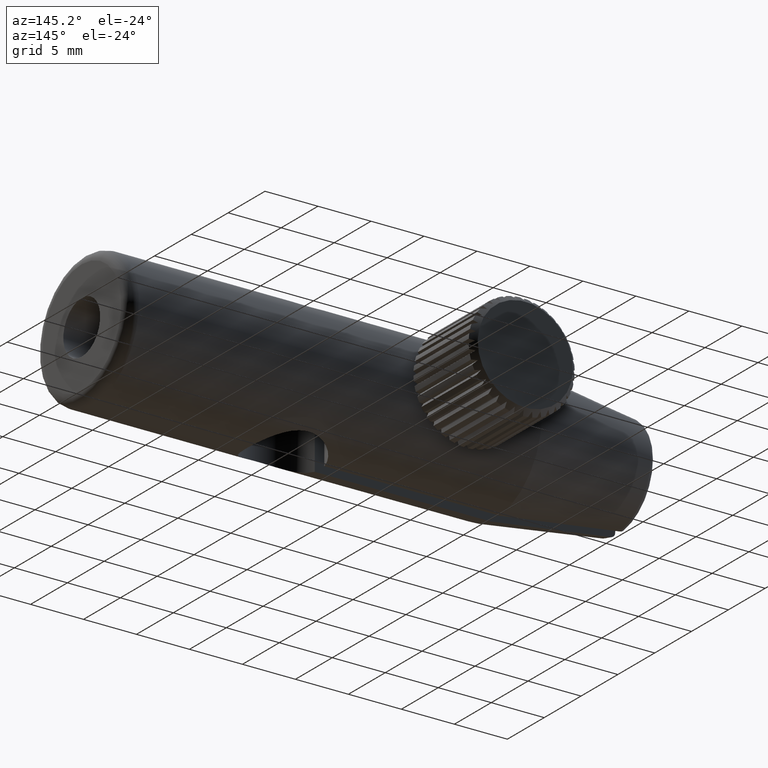
[diagram: clean part render]
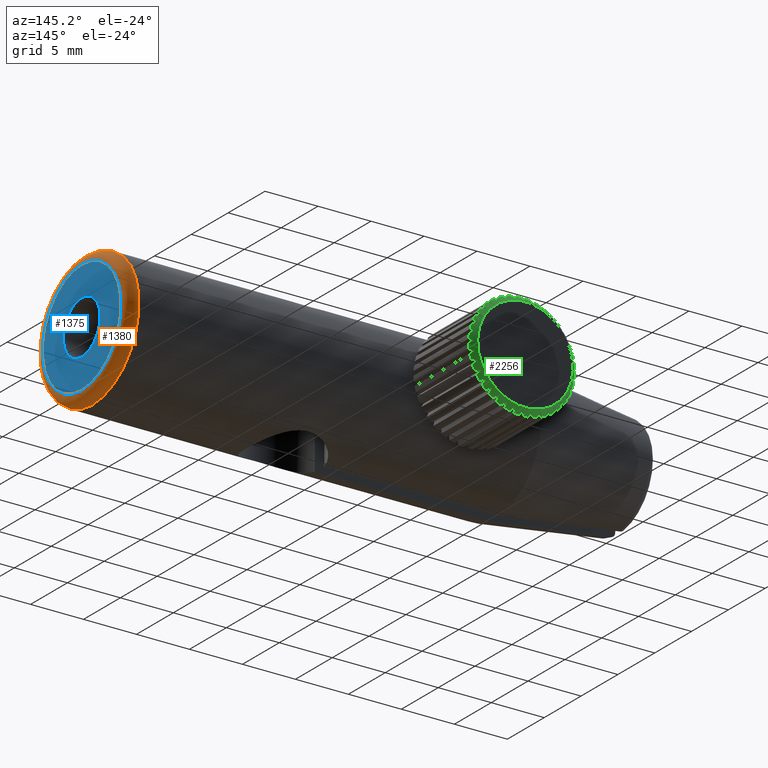
[diagram: same view with three faces highlighted in distinct colors, each labeled with its STEP entity id]
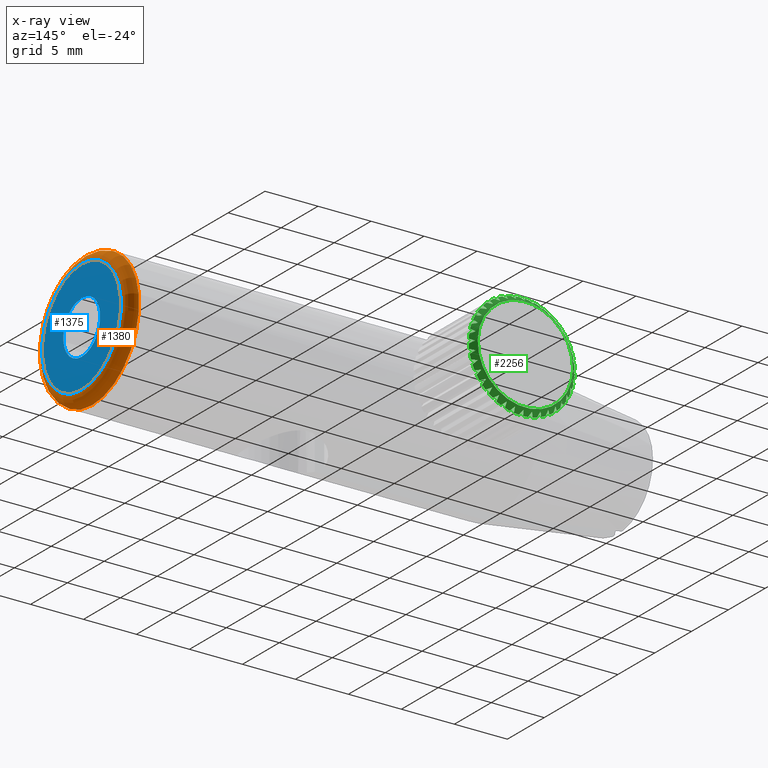
[diagram: x-ray of the same camera — body ghosted, the three highlighted faces saturated]
A machine part, auxiliary view with three faces highlighted in distinct colors.
The next image is the same camera in x-ray (body ghosted, the three faces saturated) — at least one of them is partly hidden behind the body in this view.
Their STEP definitions:

[orange] entity #1380 — the highlighted toroidal blend (fillet) surface has major radius 5.35 mm and minor (blend) radius 1 mm.
#161 = EDGE_CURVE ( 'NONE', #368, #368, #1297, .T. ) ;
#162 = EDGE_CURVE ( 'NONE', #369, #369, #1298, .T. ) ;
#368 = VERTEX_POINT ( 'NONE', #1722 ) ;
#369 = VERTEX_POINT ( 'NONE', #1723 ) ;
#1222 = ORIENTED_EDGE ( 'NONE', *, *, #161, .F. ) ;
#1223 = ORIENTED_EDGE ( 'NONE', *, *, #162, .T. ) ;
#1297 = CIRCLE ( 'NONE', #3817, 6.350000000000003200 ) ;
#1298 = CIRCLE ( 'NONE', #3818, 5.349999999999996100 ) ;
#1380 = ADVANCED_FACE ( 'NONE', ( #2968, #2971 ), #2959, .T. ) ;
#1722 = CARTESIAN_POINT ( 'NONE',  ( 16.63793868891939100, -2.668439813343262300, 6.350000000000003200 ) ) ;
#1723 = CARTESIAN_POINT ( 'NONE',  ( 17.63793868891940500, -2.668439813343262300, 5.349999999999996100 ) ) ;
#2756 = EDGE_LOOP ( 'NONE', ( #1222 ) ) ;
#2851 = DIRECTION ( 'NONE',  ( -1.000000000000000000, -0.0000000000000000000, -0.0000000000000000000 ) ) ;
#2852 = CARTESIAN_POINT ( 'NONE',  ( 16.63793868891940500, -2.668439813343262300, 0.0000000000000000000 ) ) ;
#2854 = DIRECTION ( 'NONE',  ( 0.0000000000000000000, 0.0000000000000000000, 1.000000000000000000 ) ) ;
#2959 = TOROIDAL_SURFACE ( 'NONE', #3855, 5.350000000000003200, 1.000000000000000400 ) ;
#2968 = FACE_OUTER_BOUND ( 'NONE', #2756, .T. ) ;
#2971 = FACE_OUTER_BOUND ( 'NONE', #3320, .T. ) ;
#3320 = EDGE_LOOP ( 'NONE', ( #1223 ) ) ;
#3574 = CARTESIAN_POINT ( 'NONE',  ( 16.63793868891939100, -2.668439813343262300, 0.0000000000000000000 ) ) ;
#3575 = DIRECTION ( 'NONE',  ( -1.000000000000000000, -0.0000000000000000000, -0.0000000000000000000 ) ) ;
#3576 = DIRECTION ( 'NONE',  ( 0.0000000000000000000, 0.0000000000000000000, 1.000000000000000000 ) ) ;
#3578 = CARTESIAN_POINT ( 'NONE',  ( 17.63793868891940500, -2.668439813343262300, 0.0000000000000000000 ) ) ;
#3579 = DIRECTION ( 'NONE',  ( -1.000000000000000000, -0.0000000000000000000, -0.0000000000000000000 ) ) ;
#3580 = DIRECTION ( 'NONE',  ( 0.0000000000000000000, 0.0000000000000000000, 1.000000000000000000 ) ) ;
#3817 = AXIS2_PLACEMENT_3D ( 'NONE', #3574, #3575, #3576 ) ;
#3818 = AXIS2_PLACEMENT_3D ( 'NONE', #3578, #3579, #3580 ) ;
#3855 = AXIS2_PLACEMENT_3D ( 'NONE', #2852, #2851, #2854 ) ;

[blue] entity #1375 — the highlighted planar face has unit normal (-1, 0, -0).
#162 = EDGE_CURVE ( 'NONE', #369, #369, #1298, .T. ) ;
#190 = EDGE_CURVE ( 'NONE', #374, #374, #1333, .T. ) ;
#369 = VERTEX_POINT ( 'NONE', #1723 ) ;
#374 = VERTEX_POINT ( 'NONE', #1728 ) ;
#1224 = ORIENTED_EDGE ( 'NONE', *, *, #190, .F. ) ;
#1225 = ORIENTED_EDGE ( 'NONE', *, *, #162, .F. ) ;
#1298 = CIRCLE ( 'NONE', #3818, 5.349999999999996100 ) ;
#1333 = CIRCLE ( 'NONE', #3825, 2.499999999999988500 ) ;
#1375 = ADVANCED_FACE ( 'NONE', ( #2956, #2961 ), #2836, .F. ) ;
#1723 = CARTESIAN_POINT ( 'NONE',  ( 17.63793868891940500, -2.668439813343262300, 5.349999999999996100 ) ) ;
#1728 = CARTESIAN_POINT ( 'NONE',  ( 17.63793868891940500, -2.668439813343262300, -2.499999999999988500 ) ) ;
#2834 = CARTESIAN_POINT ( 'NONE',  ( 17.63793868891940500, -2.668439813343258700, 0.0000000000000000000 ) ) ;
#2836 = PLANE ( 'NONE',  #3852 ) ;
#2838 = DIRECTION ( 'NONE',  ( -1.000000000000000000, 0.0000000000000000000, -0.0000000000000000000 ) ) ;
#2839 = DIRECTION ( 'NONE',  ( -0.0000000000000000000, 0.0000000000000000000, 1.000000000000000000 ) ) ;
#2956 = FACE_BOUND ( 'NONE', #3317, .T. ) ;
#2961 = FACE_OUTER_BOUND ( 'NONE', #3322, .T. ) ;
#3317 = EDGE_LOOP ( 'NONE', ( #1224 ) ) ;
#3322 = EDGE_LOOP ( 'NONE', ( #1225 ) ) ;
#3578 = CARTESIAN_POINT ( 'NONE',  ( 17.63793868891940500, -2.668439813343262300, 0.0000000000000000000 ) ) ;
#3579 = DIRECTION ( 'NONE',  ( -1.000000000000000000, -0.0000000000000000000, -0.0000000000000000000 ) ) ;
#3580 = DIRECTION ( 'NONE',  ( 0.0000000000000000000, 0.0000000000000000000, 1.000000000000000000 ) ) ;
#3818 = AXIS2_PLACEMENT_3D ( 'NONE', #3578, #3579, #3580 ) ;
#3825 = AXIS2_PLACEMENT_3D ( 'NONE', #4227, #4228, #4229 ) ;
#3852 = AXIS2_PLACEMENT_3D ( 'NONE', #2834, #2838, #2839 ) ;
#4227 = CARTESIAN_POINT ( 'NONE',  ( 17.63793868891940500, -2.668439813343262300, 0.0000000000000000000 ) ) ;
#4228 = DIRECTION ( 'NONE',  ( 1.000000000000000000, -0.0000000000000000000, -0.0000000000000000000 ) ) ;
#4229 = DIRECTION ( 'NONE',  ( 0.0000000000000000000, 0.0000000000000000000, -1.000000000000000000 ) ) ;

[green] entity #2256 — the highlighted conical surface has half-angle 45 deg.
#3 = CARTESIAN_POINT ( 'NONE',  ( -16.05839551668604400, 12.41565208808225400, 4.060378525099242400 ) ) ;
#4 = CARTESIAN_POINT ( 'NONE',  ( -13.56206131108059600, 12.18156018665673200, 0.0000000000000000000 ) ) ;
#5 = DIRECTION ( 'NONE',  ( 0.0000000000000000000, -1.000000000000000000, 0.0000000000000000000 ) ) ;
#6 = DIRECTION ( 'NONE',  ( -0.3292146688542670900, 0.0000000000000000000, -0.9442551042018122500 ) ) ;
#7 = CARTESIAN_POINT ( 'NONE',  ( -15.94158844516242700, 12.53156018665673700, 3.995040753004691900 ) ) ;
#8 = CARTESIAN_POINT ( 'NONE',  ( -15.94521753770057700, 12.29892227831527100, 4.261985362024835100 ) ) ;
#10 = CARTESIAN_POINT ( 'NONE',  ( -16.17458380424625000, 12.29892227831527100, 4.125370171184041400 ) ) ;
#11 = CARTESIAN_POINT ( 'NONE',  ( -16.29027974551889500, 12.18156018665673200, 4.190086416052899700 ) ) ;
#15 = CARTESIAN_POINT ( 'NONE',  ( -15.94701959624293300, 12.18156018665673200, 4.394539108716125000 ) ) ;
#19 = CARTESIAN_POINT ( 'NONE',  ( -15.94340781046367900, 12.41565208808225400, 4.128867530333087300 ) ) ;
#20 = CARTESIAN_POINT ( 'NONE',  ( -15.94158844516242700, 12.53156018665673700, 3.995040753004691900 ) ) ;
#27 = CARTESIAN_POINT ( 'NONE',  ( -15.31539325934899200, 12.41565208808225200, 4.432176137333020600 ) ) ;
#28 = CARTESIAN_POINT ( 'NONE',  ( -13.56206131108059600, 12.18156018665673200, 0.0000000000000000000 ) ) ;
#29 = DIRECTION ( 'NONE',  ( 0.0000000000000000000, -1.000000000000000000, 0.0000000000000000000 ) ) ;
#30 = DIRECTION ( 'NONE',  ( -0.3292146688542670900, 0.0000000000000000000, -0.9442551042018122500 ) ) ;
#31 = CARTESIAN_POINT ( 'NONE',  ( -15.21170653476291800, 12.53156018665673900, 4.347547657701074500 ) ) ;
#32 = CARTESIAN_POINT ( 'NONE',  ( -15.16892604833652700, 12.29892227831527100, 4.611066963594757000 ) ) ;
#34 = CARTESIAN_POINT ( 'NONE',  ( -15.41853070484129500, 12.29892227831526900, 4.516356298679427000 ) ) ;
#35 = CARTESIAN_POINT ( 'NONE',  ( -15.52123110681171300, 12.18156018665673200, 4.600179747737569400 ) ) ;
#39 = CARTESIAN_POINT ( 'NONE',  ( -15.14768301300455500, 12.18156018665673200, 4.741919845209086000 ) ) ;
#43 = CARTESIAN_POINT ( 'NONE',  ( -15.19025948381103500, 12.41565208808225400, 4.479657235043788400 ) ) ;
#44 = CARTESIAN_POINT ( 'NONE',  ( -15.21170653476291800, 12.53156018665673900, 4.347547657701074500 ) ) ;
#51 = CARTESIAN_POINT ( 'NONE',  ( -14.51911689799257500, 12.41565208808225400, 4.669304320423275800 ) ) ;
#52 = CARTESIAN_POINT ( 'NONE',  ( -13.56206131108059600, 12.18156018665673200, 0.0000000000000000000 ) ) ;
#53 = DIRECTION ( 'NONE',  ( 0.0000000000000000000, -1.000000000000000000, 0.0000000000000000000 ) ) ;
#54 = DIRECTION ( 'NONE',  ( -0.3292146688542670900, 0.0000000000000000000, -0.9442551042018122500 ) ) ;
#55 = CARTESIAN_POINT ( 'NONE',  ( -14.43170098900257900, 12.53156018665673700, 4.567956526783475200 ) ) ;
#56 = CARTESIAN_POINT ( 'NONE',  ( -14.34380943452783600, 12.29891864118458300, 4.820047508080974400 ) ) ;
#58 = CARTESIAN_POINT ( 'NONE',  ( -14.60606972232575800, 12.29892227831527100, 4.770115225425995800 ) ) ;
#59 = CARTESIAN_POINT ( 'NONE',  ( -14.69265408524899500, 12.18156018665673200, 4.870498945590502300 ) ) ;
#63 = CARTESIAN_POINT ( 'NONE',  ( -14.30016811671651000, 12.18156018665673400, 4.945219746732589300 ) ) ;
#67 = CARTESIAN_POINT ( 'NONE',  ( -14.38763872460812000, 12.41565089122142500, 4.694336126459134600 ) ) ;
#68 = CARTESIAN_POINT ( 'NONE',  ( -14.43170098900257900, 12.53156018665673700, 4.567956526783475200 ) ) ;
#75 = CARTESIAN_POINT ( 'NONE',  ( -13.69376088692133600, 12.41565208808225200, 4.764558054519461000 ) ) ;
#76 = CARTESIAN_POINT ( 'NONE',  ( -13.56206131108059600, 12.18156018665673200, 0.0000000000000000000 ) ) ;
#77 = DIRECTION ( 'NONE',  ( 0.0000000000000000000, -1.000000000000000000, 0.0000000000000000000 ) ) ;
#78 = DIRECTION ( 'NONE',  ( -0.3292146688542670900, 0.0000000000000000000, -0.9442551042018122500 ) ) ;
#79 = CARTESIAN_POINT ( 'NONE',  ( -13.62527188168749400, 12.53156018665673700, 4.649570348297093100 ) ) ;
#80 = CARTESIAN_POINT ( 'NONE',  ( -13.49494246350814200, 12.29892227831527100, 4.882565707380915200 ) ) ;
#82 = CARTESIAN_POINT ( 'NONE',  ( -13.76188707252828500, 12.29892227831526900, 4.878936614842766400 ) ) ;
#83 = CARTESIAN_POINT ( 'NONE',  ( -13.82972457435072000, 12.18156018665673200, 4.992830497573053500 ) ) ;
#87 = CARTESIAN_POINT ( 'NONE',  ( -13.43022621863928600, 12.18156018665673200, 4.998261648653558700 ) ) ;
#91 = CARTESIAN_POINT ( 'NONE',  ( -13.55993410959294100, 12.41565208808225200, 4.766377419820711800 ) ) ;
#92 = CARTESIAN_POINT ( 'NONE',  ( -13.62527188168749400, 12.53156018665673700, 4.649570348297093100 ) ) ;
#99 = CARTESIAN_POINT ( 'NONE',  ( -12.86440325088137400, 12.41565208808225200, 4.715043103111780100 ) ) ;
#100 = CARTESIAN_POINT ( 'NONE',  ( -13.56206131108059600, 12.18156018665673200, 0.0000000000000000000 ) ) ;
#101 = DIRECTION ( 'NONE',  ( 0.0000000000000000000, -1.000000000000000000, 0.0000000000000000000 ) ) ;
#102 = DIRECTION ( 'NONE',  ( -0.3292146688542670900, 0.0000000000000000000, -0.9442551042018122500 ) ) ;
#103 = CARTESIAN_POINT ( 'NONE',  ( -12.81692215317060700, 12.53156018665673700, 4.589909327573823600 ) ) ;
#104 = CARTESIAN_POINT ( 'NONE',  ( -12.64811351219225500, 12.29892227831527100, 4.796733497652198300 ) ) ;
#106 = CARTESIAN_POINT ( 'NONE',  ( -12.91163281808593600, 12.29892227831527100, 4.839513984078591200 ) ) ;
#107 = CARTESIAN_POINT ( 'NONE',  ( -12.95866225064212300, 12.18156018665673200, 4.963457421380984300 ) ) ;
#111 = CARTESIAN_POINT ( 'NONE',  ( -12.56429006313411100, 12.18156018665673400, 4.899433899622619200 ) ) ;
#115 = CARTESIAN_POINT ( 'NONE',  ( -12.73229367353866200, 12.41565208808225400, 4.693596052159897200 ) ) ;
#116 = CARTESIAN_POINT ( 'NONE',  ( -12.81692215317060700, 12.53156018665673700, 4.589909327573823600 ) ) ;
#122 = ORIENTED_EDGE ( 'NONE', *, *, #4142, .F. ) ;
#123 = ORIENTED_EDGE ( 'NONE', *, *, #4138, .F. ) ;
#124 = ORIENTED_EDGE ( 'NONE', *, *, #4135, .F. ) ;
#125 = ORIENTED_EDGE ( 'NONE', *, *, #4133, .F. ) ;
#126 = ORIENTED_EDGE ( 'NONE', *, *, #4129, .F. ) ;
#127 = ORIENTED_EDGE ( 'NONE', *, *, #4126, .F. ) ;
#128 = ORIENTED_EDGE ( 'NONE', *, *, #4124, .F. ) ;
#129 = ORIENTED_EDGE ( 'NONE', *, *, #3793, .F. ) ;
#130 = ORIENTED_EDGE ( 'NONE', *, *, #3790, .F. ) ;
#131 = ORIENTED_EDGE ( 'NONE', *, *, #3788, .F. ) ;
#132 = ORIENTED_EDGE ( 'NONE', *, *, #3784, .F. ) ;
#133 = ORIENTED_EDGE ( 'NONE', *, *, #3781, .F. ) ;
#134 = ORIENTED_EDGE ( 'NONE', *, *, #3779, .F. ) ;
#135 = ORIENTED_EDGE ( 'NONE', *, *, #3775, .F. ) ;
#136 = ORIENTED_EDGE ( 'NONE', *, *, #3772, .F. ) ;
#137 = ORIENTED_EDGE ( 'NONE', *, *, #3770, .F. ) ;
#138 = ORIENTED_EDGE ( 'NONE', *, *, #3766, .F. ) ;
#140 = EDGE_CURVE ( 'NONE', #3130, #3153, #4290, .T. ) ;
#144 = EDGE_CURVE ( 'NONE', #3132, #3130, #4289, .T. ) ;
#149 = EDGE_CURVE ( 'NONE', #3158, #3154, #4292, .T. ) ;
#164 = EDGE_CURVE ( 'NONE', #371, #371, #1300, .T. ) ;
#167 = EDGE_CURVE ( 'NONE', #3156, #3132, #1292, .T. ) ;
#168 = EDGE_CURVE ( 'NONE', #3154, #3156, #4295, .T. ) ;
#195 = EDGE_CURVE ( 'NONE', #3111, #3121, #4302, .T. ) ;
#198 = EDGE_CURVE ( 'NONE', #3121, #3120, #4303, .T. ) ;
#200 = EDGE_CURVE ( 'NONE', #3120, #3112, #1336, .T. ) ;
#204 = CIRCLE ( 'NONE', #753, 4.999999999999999100 ) ;
#213 = CIRCLE ( 'NONE', #755, 4.999999999999999100 ) ;
#225 = CIRCLE ( 'NONE', #757, 4.999999999999999100 ) ;
#237 = CIRCLE ( 'NONE', #759, 4.999999999999999100 ) ;
#249 = CIRCLE ( 'NONE', #761, 4.999999999999999100 ) ;
#253 = CIRCLE ( 'NONE', #762, 4.999999999999999100 ) ;
#264 = CIRCLE ( 'NONE', #764, 4.999999999999999100 ) ;
#276 = CIRCLE ( 'NONE', #766, 4.999999999999999100 ) ;
#288 = CIRCLE ( 'NONE', #768, 4.999999999999999100 ) ;
#300 = CIRCLE ( 'NONE', #770, 4.999999999999999100 ) ;
#312 = CIRCLE ( 'NONE', #772, 4.999999999999999100 ) ;
#324 = CIRCLE ( 'NONE', #774, 4.999999999999999100 ) ;
#336 = CIRCLE ( 'NONE', #776, 4.999999999999999100 ) ;
#348 = CIRCLE ( 'NONE', #778, 4.999999999999999100 ) ;
#360 = CIRCLE ( 'NONE', #780, 4.999999999999999100 ) ;
#371 = VERTEX_POINT ( 'NONE', #1725 ) ;
#412 = DIRECTION ( 'NONE',  ( -0.3292146688542669800, 0.0000000000000000000, -0.9442551042018121300 ) ) ;
#417 = DIRECTION ( 'NONE',  ( 0.0000000000000000000, -1.000000000000000000, 0.0000000000000000000 ) ) ;
#420 = CARTESIAN_POINT ( 'NONE',  ( -13.56206131108059600, 12.68156018665673700, 0.0000000000000000000 ) ) ;
#456 = CARTESIAN_POINT ( 'NONE',  ( -17.47569383622949600, 12.18156018665673200, -3.111829117753197600 ) ) ;
#459 = CARTESIAN_POINT ( 'NONE',  ( -17.75214772713348300, 12.18156018665673400, -2.728218434438312900 ) ) ;
#460 = CARTESIAN_POINT ( 'NONE',  ( -17.55710206408527800, 12.53156018665673700, -2.379527134081846500 ) ) ;
#464 = CARTESIAN_POINT ( 'NONE',  ( -17.21474073998307800, 12.18156018665673400, -3.414371536560222500 ) ) ;
#466 = CARTESIAN_POINT ( 'NONE',  ( -16.87587350877924000, 12.18156018665673200, -3.744148597262622900 ) ) ;
#468 = CARTESIAN_POINT ( 'NONE',  ( -17.08320786769701300, 12.53156018665673700, -3.037108316611108800 ) ) ;
#469 = CARTESIAN_POINT ( 'NONE',  ( -16.56634893673044600, 12.18156018665673200, -3.996780687299115200 ) ) ;
#472 = CARTESIAN_POINT ( 'NONE',  ( -16.17536467457179600, 12.18156018665673200, -4.262704016274831500 ) ) ;
#474 = CARTESIAN_POINT ( 'NONE',  ( -16.50232541497208400, 12.53156018665673700, -3.602408499791104600 ) ) ;
#477 = CARTESIAN_POINT ( 'NONE',  ( -17.90960896878166500, 12.53156018665673900, -1.649645223682337100 ) ) ;
#481 = CARTESIAN_POINT ( 'NONE',  ( -15.09290952125295400, 12.53156018665673700, -4.390786234538421900 ) ) ;
#485 = CARTESIAN_POINT ( 'NONE',  ( -15.39545194005998000, 12.18156018665673200, -4.651739330784838700 ) ) ;
#487 = CARTESIAN_POINT ( 'NONE',  ( -15.83210452529583800, 12.53156018665673700, -4.058251323611605300 ) ) ;
#488 = CARTESIAN_POINT ( 'NONE',  ( -15.01818872011086400, 12.18156018665673200, -4.783272203070905200 ) ) ;
#490 = CARTESIAN_POINT ( 'NONE',  ( -14.55983255902704700, 12.18156018665673200, -4.899433899622627200 ) ) ;
#491 = CARTESIAN_POINT ( 'NONE',  ( -13.69389640352187200, 12.18156018665673200, -4.998261648653559600 ) ) ;
#499 = CARTESIAN_POINT ( 'NONE',  ( -14.16546037151903400, 12.18156018665673200, -4.963457421380988800 ) ) ;
#500 = CARTESIAN_POINT ( 'NONE',  ( -14.30720046899055300, 12.53156018665673700, -4.589909327573829000 ) ) ;
#501 = CARTESIAN_POINT ( 'NONE',  ( -13.29439804781044100, 12.18156018665673400, -4.992830497573050900 ) ) ;
#506 = CARTESIAN_POINT ( 'NONE',  ( -15.82667337421532800, 12.18156018665673200, -4.457749679323037600 ) ) ;
#509 = CARTESIAN_POINT ( 'NONE',  ( -9.503809987468983400, 12.53156018665673700, -2.270043214215227600 ) ) ;
#511 = CARTESIAN_POINT ( 'NONE',  ( -9.299357294805757200, 12.18156018665673200, -2.613303363491185700 ) ) ;
#524 = CARTESIAN_POINT ( 'NONE',  ( -10.52495299446947500, 12.53156018665673700, -3.521146556616404900 ) ) ;
#527 = CARTESIAN_POINT ( 'NONE',  ( -10.14768977452035900, 12.18156018665673200, -3.652679428902471300 ) ) ;
#528 = CARTESIAN_POINT ( 'NONE',  ( -11.18253417699873600, 12.53156018665673700, -3.995040753004675900 ) ) ;
#530 = CARTESIAN_POINT ( 'NONE',  ( -10.45023219332738600, 12.18156018665673200, -3.913632525148889000 ) ) ;
#532 = CARTESIAN_POINT ( 'NONE',  ( -9.104311631757550300, 12.18156018665673400, -2.264612063134718900 ) ) ;
#533 = CARTESIAN_POINT ( 'NONE',  ( -9.959652811289483800, 12.53156018665673700, -2.940264103891474100 ) ) ;
#535 = CARTESIAN_POINT ( 'NONE',  ( -9.565280623781470500, 12.18156018665673200, -3.004287625649834300 ) ) ;
#537 = CARTESIAN_POINT ( 'NONE',  ( -9.817912713817960900, 12.18156018665673200, -3.313812197698633400 ) ) ;
#538 = CARTESIAN_POINT ( 'NONE',  ( -10.83384287664226900, 12.18156018665673200, -4.190086416052880100 ) ) ;
#539 = CARTESIAN_POINT ( 'NONE',  ( -11.91241608739824400, 12.53156018665673700, -4.347547657701063900 ) ) ;
#541 = CARTESIAN_POINT ( 'NONE',  ( -11.17710302591822600, 12.18156018665673200, -4.394539108716107200 ) ) ;
#545 = CARTESIAN_POINT ( 'NONE',  ( -11.60289151534944600, 12.18156018665673400, -4.600179747737555200 ) ) ;
#546 = CARTESIAN_POINT ( 'NONE',  ( -12.69242163315858100, 12.53156018665673700, -4.567956526783469000 ) ) ;
#548 = CARTESIAN_POINT ( 'NONE',  ( -11.97643960915660500, 12.18156018665673200, -4.741919845209075400 ) ) ;
#551 = CARTESIAN_POINT ( 'NONE',  ( -12.43146853691216300, 12.18156018665673200, -4.870498945590496100 ) ) ;
#552 = CARTESIAN_POINT ( 'NONE',  ( -13.49885074047366700, 12.53156018665673700, -4.649570348297092300 ) ) ;
#554 = CARTESIAN_POINT ( 'NONE',  ( -12.82395450544464800, 12.18156018665673400, -4.945219746732584000 ) ) ;
#557 = CARTESIAN_POINT ( 'NONE',  ( -17.95660041979671100, 12.18156018665673200, -2.384958285162353400 ) ) ;
#560 = CARTESIAN_POINT ( 'NONE',  ( -18.16224105881815700, 12.18156018665673200, -1.959169795731134900 ) ) ;
#561 = CARTESIAN_POINT ( 'NONE',  ( -18.13001783786406700, 12.53156018665673700, -0.8696396779219987000 ) ) ;
#563 = CARTESIAN_POINT ( 'NONE',  ( -18.30398115628967700, 12.18156018665673200, -1.585621701923974900 ) ) ;
#566 = CARTESIAN_POINT ( 'NONE',  ( -18.43256025667109600, 12.18156018665673200, -1.130592774168414700 ) ) ;
#567 = CARTESIAN_POINT ( 'NONE',  ( -18.21163165937769100, 12.53156018665673700, -0.06321057060691215300 ) ) ;
#571 = CARTESIAN_POINT ( 'NONE',  ( -8.616841564348002100, 12.18156018665673200, 0.7381068056358958100 ) ) ;
#575 = CARTESIAN_POINT ( 'NONE',  ( -8.742013802999620600, 12.29891864118458300, 0.7817481234472247700 ) ) ;
#576 = CARTESIAN_POINT ( 'NONE',  ( -8.867725184621459500, 12.41565089122142500, 0.8255774135275065800 ) ) ;
#577 = CARTESIAN_POINT ( 'NONE',  ( -8.994104784297118000, 12.53156018665673700, 0.8696396779219666100 ) ) ;
#584 = CARTESIAN_POINT ( 'NONE',  ( -8.797503256561134000, 12.41565208808225200, 0.1316995758407245000 ) ) ;
#585 = CARTESIAN_POINT ( 'NONE',  ( -13.56206131108059600, 12.18156018665673200, 0.0000000000000000000 ) ) ;
#586 = DIRECTION ( 'NONE',  ( 0.0000000000000000000, -1.000000000000000000, 0.0000000000000000000 ) ) ;
#587 = DIRECTION ( 'NONE',  ( -0.3292146688542670900, 0.0000000000000000000, -0.9442551042018122500 ) ) ;
#588 = CARTESIAN_POINT ( 'NONE',  ( -8.912490962783500900, 12.53156018665673700, 0.06321057060688180200 ) ) ;
#589 = CARTESIAN_POINT ( 'NONE',  ( -8.679495603699681500, 12.29892227831527100, -0.06711884757246944200 ) ) ;
#591 = CARTESIAN_POINT ( 'NONE',  ( -8.683124696237825900, 12.29892227831526900, 0.1998257614476720000 ) ) ;
#592 = CARTESIAN_POINT ( 'NONE',  ( -8.569230813507541500, 12.18156018665673200, 0.2676632632701055900 ) ) ;
#596 = CARTESIAN_POINT ( 'NONE',  ( -8.563799662427038900, 12.18156018665673400, -0.1318350924413265700 ) ) ;
#600 = CARTESIAN_POINT ( 'NONE',  ( -8.795683891259884000, 12.41565208808225200, -0.002127201487670571000 ) ) ;
#601 = CARTESIAN_POINT ( 'NONE',  ( -8.912490962783500900, 12.53156018665673700, 0.06321057060688180200 ) ) ;
#608 = CARTESIAN_POINT ( 'NONE',  ( -8.847018207968817500, 12.41565208808225200, -0.6976580601992377100 ) ) ;
#609 = CARTESIAN_POINT ( 'NONE',  ( -13.56206131108059600, 12.18156018665673200, 0.0000000000000000000 ) ) ;
#610 = DIRECTION ( 'NONE',  ( 0.0000000000000000000, -1.000000000000000000, 0.0000000000000000000 ) ) ;
#611 = DIRECTION ( 'NONE',  ( -0.3292146688542670900, 0.0000000000000000000, -0.9442551042018122500 ) ) ;
#612 = CARTESIAN_POINT ( 'NONE',  ( -8.972151983506773100, 12.53156018665673700, -0.7451391579100055100 ) ) ;
#613 = CARTESIAN_POINT ( 'NONE',  ( -8.765327813428399400, 12.29892227831527100, -0.9139477988883585300 ) ) ;
#614 = CARTESIAN_POINT ( 'NONE',  ( -8.910321980295751800, 12.18156018665673200, -1.833390628979367800 ) ) ;
#615 = CARTESIAN_POINT ( 'NONE',  ( -8.722547327002006400, 12.29892227831526900, -0.6504284929946754200 ) ) ;
#616 = CARTESIAN_POINT ( 'NONE',  ( -8.598603889699612400, 12.18156018665673200, -0.6033990604384897900 ) ) ;
#620 = CARTESIAN_POINT ( 'NONE',  ( -8.662627411457977500, 12.18156018665673200, -0.9977712479465002900 ) ) ;
#622 = CARTESIAN_POINT ( 'NONE',  ( -8.996906343218990200, 12.29892227831527100, -1.733006908814862700 ) ) ;
#624 = CARTESIAN_POINT ( 'NONE',  ( -8.868465258920700500, 12.41565208808225200, -0.8297676375419516000 ) ) ;
#625 = CARTESIAN_POINT ( 'NONE',  ( -8.972151983506773100, 12.53156018665673700, -0.7451391579100055100 ) ) ;
#627 = CARTESIAN_POINT ( 'NONE',  ( -9.171275076542167800, 12.53156018665673700, -1.530848210172342400 ) ) ;
#628 = CARTESIAN_POINT ( 'NONE',  ( -9.039797358137599700, 12.41565208808225200, -1.505817709111995800 ) ) ;
#629 = CARTESIAN_POINT ( 'NONE',  ( -13.56206131108059600, 12.18156018665673200, 0.0000000000000000000 ) ) ;
#630 = DIRECTION ( 'NONE',  ( 0.0000000000000000000, -1.000000000000000000, 0.0000000000000000000 ) ) ;
#631 = DIRECTION ( 'NONE',  ( -0.3292146688542670900, 0.0000000000000000000, -0.9442551042018122500 ) ) ;
#632 = CARTESIAN_POINT ( 'NONE',  ( -8.909016141260155000, 12.29892227831527100, -1.480919806810014400 ) ) ;
#633 = CARTESIAN_POINT ( 'NONE',  ( -8.778789108009684500, 12.18156018665673200, -1.456127409030251200 ) ) ;
#634 = CARTESIAN_POINT ( 'NONE',  ( -9.083859167552169800, 12.41565208808225200, -1.632196003812143700 ) ) ;
#635 = CARTESIAN_POINT ( 'NONE',  ( -9.171275076542167800, 12.53156018665673700, -1.530848210172342400 ) ) ;
#638 = CARTESIAN_POINT ( 'NONE',  ( -13.56206131108059600, 12.18156018665673200, 0.0000000000000000000 ) ) ;
#639 = DIRECTION ( 'NONE',  ( 0.0000000000000000000, -1.000000000000000000, 0.0000000000000000000 ) ) ;
#640 = DIRECTION ( 'NONE',  ( -0.3292146688542670900, 0.0000000000000000000, -0.9442551042018122500 ) ) ;
#656 = CARTESIAN_POINT ( 'NONE',  ( -18.32661936560006000, 12.41565208808225200, -0.1316995758407554800 ) ) ;
#658 = CARTESIAN_POINT ( 'NONE',  ( -13.56206131108059600, 12.18156018665673200, 0.0000000000000000000 ) ) ;
#659 = DIRECTION ( 'NONE',  ( 0.0000000000000000000, -1.000000000000000000, 0.0000000000000000000 ) ) ;
#660 = DIRECTION ( 'NONE',  ( -0.3292146688542670900, 0.0000000000000000000, -0.9442551042018122500 ) ) ;
#661 = CARTESIAN_POINT ( 'NONE',  ( -18.21163165937769100, 12.53156018665673700, -0.06321057060691215300 ) ) ;
#662 = CARTESIAN_POINT ( 'NONE',  ( -18.44462701846151000, 12.29892227831526900, 0.06711884757243724600 ) ) ;
#664 = CARTESIAN_POINT ( 'NONE',  ( -18.44099792592336200, 12.29892227831526900, -0.1998257614477045300 ) ) ;
#665 = CARTESIAN_POINT ( 'NONE',  ( -18.55489180865364700, 12.18156018665673200, -0.2676632632701379000 ) ) ;
#669 = CARTESIAN_POINT ( 'NONE',  ( -18.56032295973415500, 12.18156018665673200, 0.1318350924412942700 ) ) ;
#673 = CARTESIAN_POINT ( 'NONE',  ( -18.32843873090130800, 12.41565208808225100, 0.002127201487638478600 ) ) ;
#674 = CARTESIAN_POINT ( 'NONE',  ( -18.21163165937769100, 12.53156018665673700, -0.06321057060691215300 ) ) ;
#681 = CARTESIAN_POINT ( 'NONE',  ( -13.56206131108059600, 12.18156018665673200, 0.0000000000000000000 ) ) ;
#682 = DIRECTION ( 'NONE',  ( 0.0000000000000000000, -1.000000000000000000, 0.0000000000000000000 ) ) ;
#697 = AXIS2_PLACEMENT_3D ( 'NONE', #420, #417, #412 ) ;
#709 = AXIS2_PLACEMENT_3D ( 'NONE', #2244, #2245, #2246 ) ;
#711 = AXIS2_PLACEMENT_3D ( 'NONE', #585, #586, #587 ) ;
#713 = AXIS2_PLACEMENT_3D ( 'NONE', #609, #610, #611 ) ;
#714 = AXIS2_PLACEMENT_3D ( 'NONE', #629, #630, #631 ) ;
#715 = AXIS2_PLACEMENT_3D ( 'NONE', #638, #639, #640 ) ;
#718 = AXIS2_PLACEMENT_3D ( 'NONE', #658, #659, #660 ) ;
#720 = AXIS2_PLACEMENT_3D ( 'NONE', #681, #682, #942 ) ;
#722 = AXIS2_PLACEMENT_3D ( 'NONE', #965, #966, #967 ) ;
#724 = AXIS2_PLACEMENT_3D ( 'NONE', #989, #990, #991 ) ;
#726 = AXIS2_PLACEMENT_3D ( 'NONE', #1013, #1014, #1015 ) ;
#728 = AXIS2_PLACEMENT_3D ( 'NONE', #1037, #1038, #1039 ) ;
#730 = AXIS2_PLACEMENT_3D ( 'NONE', #4, #5, #6 ) ;
#732 = AXIS2_PLACEMENT_3D ( 'NONE', #28, #29, #30 ) ;
#734 = AXIS2_PLACEMENT_3D ( 'NONE', #52, #53, #54 ) ;
#736 = AXIS2_PLACEMENT_3D ( 'NONE', #76, #77, #78 ) ;
#738 = AXIS2_PLACEMENT_3D ( 'NONE', #100, #101, #102 ) ;
#740 = AXIS2_PLACEMENT_3D ( 'NONE', #1474, #1475, #1476 ) ;
#742 = AXIS2_PLACEMENT_3D ( 'NONE', #1498, #1499, #1500 ) ;
#744 = AXIS2_PLACEMENT_3D ( 'NONE', #1522, #1523, #1524 ) ;
#753 = AXIS2_PLACEMENT_3D ( 'NONE', #1634, #1635, #1636 ) ;
#755 = AXIS2_PLACEMENT_3D ( 'NONE', #1658, #1659, #1660 ) ;
#757 = AXIS2_PLACEMENT_3D ( 'NONE', #1682, #1683, #1684 ) ;
#759 = AXIS2_PLACEMENT_3D ( 'NONE', #1706, #1707, #1708 ) ;
#761 = AXIS2_PLACEMENT_3D ( 'NONE', #4462, #4463, #4464 ) ;
#762 = AXIS2_PLACEMENT_3D ( 'NONE', #4466, #4467, #4468 ) ;
#764 = AXIS2_PLACEMENT_3D ( 'NONE', #4490, #4491, #4492 ) ;
#766 = AXIS2_PLACEMENT_3D ( 'NONE', #4514, #4515, #4516 ) ;
#768 = AXIS2_PLACEMENT_3D ( 'NONE', #4538, #4539, #4540 ) ;
#770 = AXIS2_PLACEMENT_3D ( 'NONE', #4562, #4563, #4564 ) ;
#772 = AXIS2_PLACEMENT_3D ( 'NONE', #4586, #4587, #4588 ) ;
#774 = AXIS2_PLACEMENT_3D ( 'NONE', #4610, #4611, #4612 ) ;
#776 = AXIS2_PLACEMENT_3D ( 'NONE', #4634, #4635, #4636 ) ;
#778 = AXIS2_PLACEMENT_3D ( 'NONE', #4658, #4659, #4660 ) ;
#780 = AXIS2_PLACEMENT_3D ( 'NONE', #1716, #1717, #1718 ) ;
#804 = CIRCLE ( 'NONE', #726, 4.999999999999999100 ) ;
#816 = CIRCLE ( 'NONE', #728, 4.999999999999999100 ) ;
#828 = CIRCLE ( 'NONE', #730, 4.999999999999999100 ) ;
#840 = CIRCLE ( 'NONE', #732, 4.999999999999999100 ) ;
#852 = CIRCLE ( 'NONE', #734, 4.999999999999999100 ) ;
#864 = CIRCLE ( 'NONE', #736, 4.999999999999999100 ) ;
#876 = CIRCLE ( 'NONE', #738, 4.999999999999999100 ) ;
#888 = CIRCLE ( 'NONE', #740, 4.999999999999999100 ) ;
#900 = CIRCLE ( 'NONE', #742, 4.999999999999999100 ) ;
#912 = CIRCLE ( 'NONE', #744, 4.999999999999999100 ) ;
#942 = DIRECTION ( 'NONE',  ( -0.3292146688542670900, 0.0000000000000000000, -0.9442551042018122500 ) ) ;
#943 = CARTESIAN_POINT ( 'NONE',  ( -18.15197063865442200, 12.53156018665673900, 0.7451391579099730900 ) ) ;
#944 = CARTESIAN_POINT ( 'NONE',  ( -18.35879480873279600, 12.29892227831527100, 0.9139477988883243400 ) ) ;
#946 = CARTESIAN_POINT ( 'NONE',  ( -18.27710441419237600, 12.41565208808225400, 0.6976580601992044000 ) ) ;
#947 = CARTESIAN_POINT ( 'NONE',  ( -18.40157529515918700, 12.29892227831527100, 0.6504284929946413400 ) ) ;
#948 = CARTESIAN_POINT ( 'NONE',  ( -18.52551873246158100, 12.18156018665673200, 0.6033990604384542600 ) ) ;
#952 = CARTESIAN_POINT ( 'NONE',  ( -18.46149521070322000, 12.18156018665673200, 0.9977712479464668800 ) ) ;
#956 = CARTESIAN_POINT ( 'NONE',  ( -18.25565736324049500, 12.41565208808225400, 0.8297676375419182900 ) ) ;
#957 = CARTESIAN_POINT ( 'NONE',  ( -18.15197063865442200, 12.53156018665673900, 0.7451391579099730900 ) ) ;
#964 = CARTESIAN_POINT ( 'NONE',  ( -18.08432526402359400, 12.41565208808225200, 1.505817709111995500 ) ) ;
#965 = CARTESIAN_POINT ( 'NONE',  ( -13.56206131108059600, 12.18156018665673200, 0.0000000000000000000 ) ) ;
#966 = DIRECTION ( 'NONE',  ( 0.0000000000000000000, -1.000000000000000000, 0.0000000000000000000 ) ) ;
#967 = DIRECTION ( 'NONE',  ( -0.3292146688542670900, 0.0000000000000000000, -0.9442551042018122500 ) ) ;
#968 = CARTESIAN_POINT ( 'NONE',  ( -17.95284754561902200, 12.53156018665673700, 1.530848210172342400 ) ) ;
#969 = CARTESIAN_POINT ( 'NONE',  ( -18.12721627894220000, 12.29892227831527100, 1.733006908814862700 ) ) ;
#971 = CARTESIAN_POINT ( 'NONE',  ( -18.21510648090103900, 12.29892227831527100, 1.480919806810014400 ) ) ;
#972 = CARTESIAN_POINT ( 'NONE',  ( -18.34533351415150500, 12.18156018665673200, 1.456127409030251200 ) ) ;
#976 = CARTESIAN_POINT ( 'NONE',  ( -18.21380064186543600, 12.18156018665673200, 1.833390628979367800 ) ) ;
#980 = CARTESIAN_POINT ( 'NONE',  ( -18.04026345460902200, 12.41565208808225200, 1.632196003812143000 ) ) ;
#981 = CARTESIAN_POINT ( 'NONE',  ( -17.95284754561902200, 12.53156018665673700, 1.530848210172342400 ) ) ;
#988 = CARTESIAN_POINT ( 'NONE',  ( -17.75413941202058500, 12.41565208808225200, 2.268223848914005600 ) ) ;
#989 = CARTESIAN_POINT ( 'NONE',  ( -13.56206131108059600, 12.18156018665673200, 0.0000000000000000000 ) ) ;
#990 = DIRECTION ( 'NONE',  ( 0.0000000000000000000, -1.000000000000000000, 0.0000000000000000000 ) ) ;
#991 = DIRECTION ( 'NONE',  ( -0.3292146688542670900, 0.0000000000000000000, -0.9442551042018122500 ) ) ;
#992 = CARTESIAN_POINT ( 'NONE',  ( -17.62031263469219400, 12.53156018665673700, 2.270043214215255600 ) ) ;
#993 = CARTESIAN_POINT ( 'NONE',  ( -17.75692782553298300, 12.29892227831527100, 2.499409480760927500 ) ) ;
#995 = CARTESIAN_POINT ( 'NONE',  ( -17.88725724371233400, 12.29892227831527100, 2.266414121677106800 ) ) ;
#996 = CARTESIAN_POINT ( 'NONE',  ( -18.01981099040362400, 12.18156018665673200, 2.264612063134749500 ) ) ;
#1000 = CARTESIAN_POINT ( 'NONE',  ( -17.82476532735541500, 12.18156018665673400, 2.613303363491214600 ) ) ;
#1004 = CARTESIAN_POINT ( 'NONE',  ( -17.68880163992603700, 12.41565208808225200, 2.385030920437623000 ) ) ;
#1005 = CARTESIAN_POINT ( 'NONE',  ( -17.62031263469219400, 12.53156018665673700, 2.270043214215255600 ) ) ;
#1012 = CARTESIAN_POINT ( 'NONE',  ( -17.29657938821440400, 12.41565208808225200, 2.961711154843380100 ) ) ;
#1013 = CARTESIAN_POINT ( 'NONE',  ( -13.56206131108059600, 12.18156018665673200, 0.0000000000000000000 ) ) ;
#1014 = DIRECTION ( 'NONE',  ( 0.0000000000000000000, -1.000000000000000000, 0.0000000000000000000 ) ) ;
#1015 = DIRECTION ( 'NONE',  ( -0.3292146688542670900, 0.0000000000000000000, -0.9442551042018122500 ) ) ;
#1016 = CARTESIAN_POINT ( 'NONE',  ( -17.16446981087169000, 12.53156018665673700, 2.940264103891498500 ) ) ;
#1017 = CARTESIAN_POINT ( 'NONE',  ( -17.25918047578701900, 12.29892227831527100, 3.189868760396266100 ) ) ;
#1019 = CARTESIAN_POINT ( 'NONE',  ( -17.42798911676537400, 12.29892227831526900, 2.983044590317889700 ) ) ;
#1020 = CARTESIAN_POINT ( 'NONE',  ( -17.55884199837970200, 12.18156018665673200, 3.004287625649861400 ) ) ;
#1024 = CARTESIAN_POINT ( 'NONE',  ( -17.30620990834320900, 12.18156018665673400, 3.313812197698657900 ) ) ;
#1028 = CARTESIAN_POINT ( 'NONE',  ( -17.21195090858245500, 12.41565208808225400, 3.065397879429455400 ) ) ;
#1029 = CARTESIAN_POINT ( 'NONE',  ( -17.16446981087169000, 12.53156018665673700, 2.940264103891498500 ) ) ;
#1036 = CARTESIAN_POINT ( 'NONE',  ( -16.72554057483292300, 12.41565882691018700, 3.565205804303596300 ) ) ;
#1037 = CARTESIAN_POINT ( 'NONE',  ( -13.56206131108059600, 12.18156018665673200, 0.0000000000000000000 ) ) ;
#1038 = DIRECTION ( 'NONE',  ( 0.0000000000000000000, -1.000000000000000000, 0.0000000000000000000 ) ) ;
#1039 = DIRECTION ( 'NONE',  ( -0.3292146688542670900, 0.0000000000000000000, -0.9442551042018122500 ) ) ;
#1040 = CARTESIAN_POINT ( 'NONE',  ( -16.59916962769169000, 12.53156018665673700, 3.521146556616425700 ) ) ;
#1041 = CARTESIAN_POINT ( 'NONE',  ( -16.64909803105401300, 12.29892227831527100, 3.783405491898440800 ) ) ;
#1043 = CARTESIAN_POINT ( 'NONE',  ( -16.85124982488433800, 12.29892875209969300, 3.609034351211561500 ) ) ;
#1044 = CARTESIAN_POINT ( 'NONE',  ( -16.97643284764080800, 12.18156018665673400, 3.652679428902494900 ) ) ;
#1048 = CARTESIAN_POINT ( 'NONE',  ( -16.67389042883377900, 12.18156018665673400, 3.913632525148910800 ) ) ;
#1052 = CARTESIAN_POINT ( 'NONE',  ( -16.62420012875203700, 12.41565208808225200, 3.652624275020995600 ) ) ;
#1053 = CARTESIAN_POINT ( 'NONE',  ( -16.59916962769169000, 12.53156018665673700, 3.521146556616425700 ) ) ;
#1292 = CIRCLE ( 'NONE', #3821, 4.999999999999999100 ) ;
#1300 = CIRCLE ( 'NONE', #3820, 4.500000000000003600 ) ;
#1336 = CIRCLE ( 'NONE', #3827, 4.999999999999999100 ) ;
#1473 = CARTESIAN_POINT ( 'NONE',  ( -12.05624360196855300, 12.41565208808225200, 4.522263952942980200 ) ) ;
#1474 = CARTESIAN_POINT ( 'NONE',  ( -13.56206131108059600, 12.18156018665673200, 0.0000000000000000000 ) ) ;
#1475 = DIRECTION ( 'NONE',  ( 0.0000000000000000000, -1.000000000000000000, 0.0000000000000000000 ) ) ;
#1476 = DIRECTION ( 'NONE',  ( -0.3292146688542670900, 0.0000000000000000000, -0.9442551042018122500 ) ) ;
#1477 = CARTESIAN_POINT ( 'NONE',  ( -12.03121310090820700, 12.53156018665673700, 4.390786234538411200 ) ) ;
#1478 = CARTESIAN_POINT ( 'NONE',  ( -11.82905440226568500, 12.29892227831527100, 4.565154967861587900 ) ) ;
#1480 = CARTESIAN_POINT ( 'NONE',  ( -12.08114150427053300, 12.29892227831526900, 4.653045169820425800 ) ) ;
#1481 = CARTESIAN_POINT ( 'NONE',  ( -12.10593390205029400, 12.18156018665673200, 4.783272203070896300 ) ) ;
#1485 = CARTESIAN_POINT ( 'NONE',  ( -11.72867068210118000, 12.18156018665673400, 4.651739330784824500 ) ) ;
#1489 = CARTESIAN_POINT ( 'NONE',  ( -11.92986530726840400, 12.41565208808225400, 4.478202143528406500 ) ) ;
#1490 = CARTESIAN_POINT ( 'NONE',  ( -12.03121310090820700, 12.53156018665673700, 4.390786234538411200 ) ) ;
#1497 = CARTESIAN_POINT ( 'NONE',  ( -11.29383746216657900, 12.41565208808225200, 4.192078100939984800 ) ) ;
#1498 = CARTESIAN_POINT ( 'NONE',  ( -13.56206131108059600, 12.18156018665673200, 0.0000000000000000000 ) ) ;
#1499 = DIRECTION ( 'NONE',  ( 0.0000000000000000000, -1.000000000000000000, 0.0000000000000000000 ) ) ;
#1500 = DIRECTION ( 'NONE',  ( -0.3292146688542670900, 0.0000000000000000000, -0.9442551042018122500 ) ) ;
#1501 = CARTESIAN_POINT ( 'NONE',  ( -11.29201809686532900, 12.53156018665673700, 4.058251323611588500 ) ) ;
#1502 = CARTESIAN_POINT ( 'NONE',  ( -11.06265183031965400, 12.29892227831527100, 4.194866514452380500 ) ) ;
#1504 = CARTESIAN_POINT ( 'NONE',  ( -11.29564718940347700, 12.29892227831526900, 4.325195932631731700 ) ) ;
#1505 = CARTESIAN_POINT ( 'NONE',  ( -11.29744924794583300, 12.18156018665673200, 4.457749679323023400 ) ) ;
#1509 = CARTESIAN_POINT ( 'NONE',  ( -10.94875794758936700, 12.18156018665673200, 4.262704016274813800 ) ) ;
#1513 = CARTESIAN_POINT ( 'NONE',  ( -11.17703039064295800, 12.41565208808225400, 4.126740328845431600 ) ) ;
#1514 = CARTESIAN_POINT ( 'NONE',  ( -11.29201809686532900, 12.53156018665673700, 4.058251323611588500 ) ) ;
#1521 = CARTESIAN_POINT ( 'NONE',  ( -10.60035015623720200, 12.41565208808225200, 3.734518077133797600 ) ) ;
#1522 = CARTESIAN_POINT ( 'NONE',  ( -13.56206131108059600, 12.18156018665673200, 0.0000000000000000000 ) ) ;
#1523 = DIRECTION ( 'NONE',  ( 0.0000000000000000000, -1.000000000000000000, 0.0000000000000000000 ) ) ;
#1524 = DIRECTION ( 'NONE',  ( -0.3292146688542670900, 0.0000000000000000000, -0.9442551042018122500 ) ) ;
#1525 = CARTESIAN_POINT ( 'NONE',  ( -10.62179720718908400, 12.53156018665673700, 3.602408499791083700 ) ) ;
#1526 = CARTESIAN_POINT ( 'NONE',  ( -10.37219255068431600, 12.29892227831526900, 3.697119164706413700 ) ) ;
#1528 = CARTESIAN_POINT ( 'NONE',  ( -10.57901672076269300, 12.29892227831526900, 3.865927805684766600 ) ) ;
#1529 = CARTESIAN_POINT ( 'NONE',  ( -10.55777368543072100, 12.18156018665673200, 3.996780687299095200 ) ) ;
#1533 = CARTESIAN_POINT ( 'NONE',  ( -10.24824911338192400, 12.18156018665673200, 3.744148597262600700 ) ) ;
#1537 = CARTESIAN_POINT ( 'NONE',  ( -10.49666343165112700, 12.41565208808225200, 3.649889597501851900 ) ) ;
#1538 = CARTESIAN_POINT ( 'NONE',  ( -10.62179720718908400, 12.53156018665673700, 3.602408499791083700 ) ) ;
#1613 = CARTESIAN_POINT ( 'NONE',  ( -13.69389640352187200, 12.18156018665673200, -4.998261648653559600 ) ) ;
#1614 = CARTESIAN_POINT ( 'NONE',  ( -13.62918015865301600, 12.29892227831527100, -4.882565707380915200 ) ) ;
#1618 = CARTESIAN_POINT ( 'NONE',  ( -13.49885074047366700, 12.53156018665673700, -4.649570348297092300 ) ) ;
#1620 = CARTESIAN_POINT ( 'NONE',  ( -13.43036173523982200, 12.41565208808225200, -4.764558054519460100 ) ) ;
#1621 = CARTESIAN_POINT ( 'NONE',  ( -13.56418851256821700, 12.41565208808225200, -4.766377419820710900 ) ) ;
#1622 = CARTESIAN_POINT ( 'NONE',  ( -13.49885074047366700, 12.53156018665673700, -4.649570348297092300 ) ) ;
#1628 = CARTESIAN_POINT ( 'NONE',  ( -13.36223554963287400, 12.29892227831527100, -4.878936614842764600 ) ) ;
#1629 = CARTESIAN_POINT ( 'NONE',  ( -13.29439804781044100, 12.18156018665673400, -4.992830497573050900 ) ) ;
#1634 = CARTESIAN_POINT ( 'NONE',  ( -13.56206131108059600, 12.18156018665673200, 0.0000000000000000000 ) ) ;
#1635 = DIRECTION ( 'NONE',  ( 0.0000000000000000000, -1.000000000000000000, 0.0000000000000000000 ) ) ;
#1636 = DIRECTION ( 'NONE',  ( -0.3292146688542670900, 0.0000000000000000000, -0.9442551042018122500 ) ) ;
#1637 = CARTESIAN_POINT ( 'NONE',  ( -12.82395450544464800, 12.18156018665673400, -4.945219746732584000 ) ) ;
#1638 = CARTESIAN_POINT ( 'NONE',  ( -12.78030942775371400, 12.29892875209969500, -4.820036723976113700 ) ) ;
#1642 = CARTESIAN_POINT ( 'NONE',  ( -12.69242163315858100, 12.53156018665673700, -4.567956526783469000 ) ) ;
#1644 = CARTESIAN_POINT ( 'NONE',  ( -12.60500572416858100, 12.41565208808225200, -4.669304320423268700 ) ) ;
#1645 = CARTESIAN_POINT ( 'NONE',  ( -12.73648088084575000, 12.41565882691018700, -4.694327473924703400 ) ) ;
#1646 = CARTESIAN_POINT ( 'NONE',  ( -12.69242163315858100, 12.53156018665673700, -4.567956526783469000 ) ) ;
#1652 = CARTESIAN_POINT ( 'NONE',  ( -12.51805289983540000, 12.29892227831527100, -4.770115225425987800 ) ) ;
#1653 = CARTESIAN_POINT ( 'NONE',  ( -12.43146853691216300, 12.18156018665673200, -4.870498945590496100 ) ) ;
#1658 = CARTESIAN_POINT ( 'NONE',  ( -13.56206131108059600, 12.18156018665673200, 0.0000000000000000000 ) ) ;
#1659 = DIRECTION ( 'NONE',  ( 0.0000000000000000000, -1.000000000000000000, 0.0000000000000000000 ) ) ;
#1660 = DIRECTION ( 'NONE',  ( -0.3292146688542670900, 0.0000000000000000000, -0.9442551042018122500 ) ) ;
#1661 = CARTESIAN_POINT ( 'NONE',  ( -11.97643960915660500, 12.18156018665673200, -4.741919845209075400 ) ) ;
#1662 = CARTESIAN_POINT ( 'NONE',  ( -11.95519657382463500, 12.29892227831527100, -4.611066963594747200 ) ) ;
#1666 = CARTESIAN_POINT ( 'NONE',  ( -11.91241608739824400, 12.53156018665673700, -4.347547657701063900 ) ) ;
#1668 = CARTESIAN_POINT ( 'NONE',  ( -11.80872936281216900, 12.41565208808225200, -4.432176137333009100 ) ) ;
#1669 = CARTESIAN_POINT ( 'NONE',  ( -11.93386313835012700, 12.41565208808225200, -4.479657235043778700 ) ) ;
#1670 = CARTESIAN_POINT ( 'NONE',  ( -11.91241608739824400, 12.53156018665673700, -4.347547657701063900 ) ) ;
#1676 = CARTESIAN_POINT ( 'NONE',  ( -11.70559191731986600, 12.29892227831527100, -4.516356298679413700 ) ) ;
#1677 = CARTESIAN_POINT ( 'NONE',  ( -11.60289151534944600, 12.18156018665673400, -4.600179747737555200 ) ) ;
#1682 = CARTESIAN_POINT ( 'NONE',  ( -13.56206131108059600, 12.18156018665673200, 0.0000000000000000000 ) ) ;
#1683 = DIRECTION ( 'NONE',  ( 0.0000000000000000000, -1.000000000000000000, 0.0000000000000000000 ) ) ;
#1684 = DIRECTION ( 'NONE',  ( -0.3292146688542670900, 0.0000000000000000000, -0.9442551042018122500 ) ) ;
#1685 = CARTESIAN_POINT ( 'NONE',  ( -11.17710302591822600, 12.18156018665673200, -4.394539108716107200 ) ) ;
#1686 = CARTESIAN_POINT ( 'NONE',  ( -11.17890508446058500, 12.29892227831527100, -4.261985362024817400 ) ) ;
#1690 = CARTESIAN_POINT ( 'NONE',  ( -11.18253417699873600, 12.53156018665673700, -3.995040753004675900 ) ) ;
#1692 = CARTESIAN_POINT ( 'NONE',  ( -11.06572710547511600, 12.41565208808225200, -4.060378525099227300 ) ) ;
#1693 = CARTESIAN_POINT ( 'NONE',  ( -11.18071481169748300, 12.41565208808225200, -4.128867530333069500 ) ) ;
#1694 = CARTESIAN_POINT ( 'NONE',  ( -11.18253417699873600, 12.53156018665673700, -3.995040753004675900 ) ) ;
#1700 = CARTESIAN_POINT ( 'NONE',  ( -10.94953881791491100, 12.29892227831526900, -4.125370171184026300 ) ) ;
#1701 = CARTESIAN_POINT ( 'NONE',  ( -10.83384287664226900, 12.18156018665673200, -4.190086416052880100 ) ) ;
#1706 = CARTESIAN_POINT ( 'NONE',  ( -13.56206131108059600, 12.18156018665673200, 0.0000000000000000000 ) ) ;
#1707 = DIRECTION ( 'NONE',  ( 0.0000000000000000000, -1.000000000000000000, 0.0000000000000000000 ) ) ;
#1708 = DIRECTION ( 'NONE',  ( -0.3292146688542670900, 0.0000000000000000000, -0.9442551042018122500 ) ) ;
#1709 = CARTESIAN_POINT ( 'NONE',  ( -10.45023219332738600, 12.18156018665673200, -3.913632525148889000 ) ) ;
#1716 = CARTESIAN_POINT ( 'NONE',  ( -13.56206131108059600, 12.18156018665673200, 0.0000000000000000000 ) ) ;
#1717 = DIRECTION ( 'NONE',  ( 0.0000000000000000000, -1.000000000000000000, 0.0000000000000000000 ) ) ;
#1718 = DIRECTION ( 'NONE',  ( -0.3292146688542670900, 0.0000000000000000000, -0.9442551042018122500 ) ) ;
#1725 = CARTESIAN_POINT ( 'NONE',  ( -15.04352732092479900, 12.68156018665673700, -4.249147968908157900 ) ) ;
#2040 = CARTESIAN_POINT ( 'NONE',  ( -9.912171713578713300, 12.41565208808225200, -3.065397879429431400 ) ) ;
#2041 = CARTESIAN_POINT ( 'NONE',  ( -9.864942146374149300, 12.29892227831526900, -3.189868760396241700 ) ) ;
#2044 = CARTESIAN_POINT ( 'NONE',  ( -9.817912713817960900, 12.18156018665673200, -3.313812197698633400 ) ) ;
#2046 = CARTESIAN_POINT ( 'NONE',  ( -9.959652811289483800, 12.53156018665673700, -2.940264103891474100 ) ) ;
#2096 = CARTESIAN_POINT ( 'NONE',  ( -18.50728105781318100, 12.18156018665673400, -0.7381068056359306700 ) ) ;
#2099 = CARTESIAN_POINT ( 'NONE',  ( -18.55489180865364700, 12.18156018665673200, -0.2676632632701379000 ) ) ;
#2100 = CARTESIAN_POINT ( 'NONE',  ( -18.15197063865442200, 12.53156018665673900, 0.7451391579099730900 ) ) ;
#2102 = CARTESIAN_POINT ( 'NONE',  ( -18.56032295973415500, 12.18156018665673200, 0.1318350924412942700 ) ) ;
#2105 = CARTESIAN_POINT ( 'NONE',  ( -18.52551873246158100, 12.18156018665673200, 0.6033990604384542600 ) ) ;
#2106 = CARTESIAN_POINT ( 'NONE',  ( -17.95284754561902200, 12.53156018665673700, 1.530848210172342400 ) ) ;
#2108 = CARTESIAN_POINT ( 'NONE',  ( -18.46149521070322000, 12.18156018665673200, 0.9977712479464668800 ) ) ;
#2111 = CARTESIAN_POINT ( 'NONE',  ( -18.34533351415150500, 12.18156018665673200, 1.456127409030251200 ) ) ;
#2112 = CARTESIAN_POINT ( 'NONE',  ( -17.62031263469219400, 12.53156018665673700, 2.270043214215255600 ) ) ;
#2114 = CARTESIAN_POINT ( 'NONE',  ( -18.21380064186543600, 12.18156018665673200, 1.833390628979367800 ) ) ;
#2117 = CARTESIAN_POINT ( 'NONE',  ( -18.01981099040362400, 12.18156018665673200, 2.264612063134749500 ) ) ;
#2118 = CARTESIAN_POINT ( 'NONE',  ( -17.16446981087169000, 12.53156018665673700, 2.940264103891498500 ) ) ;
#2120 = CARTESIAN_POINT ( 'NONE',  ( -17.82476532735541500, 12.18156018665673400, 2.613303363491214600 ) ) ;
#2123 = CARTESIAN_POINT ( 'NONE',  ( -17.55884199837970200, 12.18156018665673200, 3.004287625649861400 ) ) ;
#2124 = CARTESIAN_POINT ( 'NONE',  ( -16.59916962769169000, 12.53156018665673700, 3.521146556616425700 ) ) ;
#2126 = CARTESIAN_POINT ( 'NONE',  ( -17.30620990834320900, 12.18156018665673400, 3.313812197698657900 ) ) ;
#2129 = CARTESIAN_POINT ( 'NONE',  ( -16.97643284764080800, 12.18156018665673400, 3.652679428902494900 ) ) ;
#2130 = CARTESIAN_POINT ( 'NONE',  ( -15.94158844516242700, 12.53156018665673700, 3.995040753004691900 ) ) ;
#2132 = CARTESIAN_POINT ( 'NONE',  ( -16.67389042883377900, 12.18156018665673400, 3.913632525148910800 ) ) ;
#2135 = CARTESIAN_POINT ( 'NONE',  ( -16.29027974551889500, 12.18156018665673200, 4.190086416052899700 ) ) ;
#2136 = CARTESIAN_POINT ( 'NONE',  ( -15.21170653476291800, 12.53156018665673900, 4.347547657701074500 ) ) ;
#2138 = CARTESIAN_POINT ( 'NONE',  ( -15.94701959624293300, 12.18156018665673200, 4.394539108716125000 ) ) ;
#2141 = CARTESIAN_POINT ( 'NONE',  ( -15.52123110681171300, 12.18156018665673200, 4.600179747737569400 ) ) ;
#2142 = CARTESIAN_POINT ( 'NONE',  ( -14.43170098900257900, 12.53156018665673700, 4.567956526783475200 ) ) ;
#2144 = CARTESIAN_POINT ( 'NONE',  ( -15.14768301300455500, 12.18156018665673200, 4.741919845209086000 ) ) ;
#2147 = CARTESIAN_POINT ( 'NONE',  ( -14.69265408524899500, 12.18156018665673200, 4.870498945590502300 ) ) ;
#2148 = CARTESIAN_POINT ( 'NONE',  ( -13.62527188168749400, 12.53156018665673700, 4.649570348297093100 ) ) ;
#2150 = CARTESIAN_POINT ( 'NONE',  ( -14.30016811671651000, 12.18156018665673400, 4.945219746732589300 ) ) ;
#2153 = CARTESIAN_POINT ( 'NONE',  ( -13.82972457435072000, 12.18156018665673200, 4.992830497573053500 ) ) ;
#2154 = CARTESIAN_POINT ( 'NONE',  ( -12.81692215317060700, 12.53156018665673700, 4.589909327573823600 ) ) ;
#2156 = CARTESIAN_POINT ( 'NONE',  ( -13.43022621863928600, 12.18156018665673200, 4.998261648653558700 ) ) ;
#2159 = CARTESIAN_POINT ( 'NONE',  ( -12.95866225064212300, 12.18156018665673200, 4.963457421380984300 ) ) ;
#2160 = CARTESIAN_POINT ( 'NONE',  ( -12.03121310090820700, 12.53156018665673700, 4.390786234538411200 ) ) ;
#2162 = CARTESIAN_POINT ( 'NONE',  ( -12.56429006313411100, 12.18156018665673400, 4.899433899622619200 ) ) ;
#2165 = CARTESIAN_POINT ( 'NONE',  ( -12.10593390205029400, 12.18156018665673200, 4.783272203070896300 ) ) ;
#2166 = CARTESIAN_POINT ( 'NONE',  ( -11.29201809686532900, 12.53156018665673700, 4.058251323611588500 ) ) ;
#2168 = CARTESIAN_POINT ( 'NONE',  ( -11.72867068210118000, 12.18156018665673400, 4.651739330784824500 ) ) ;
#2171 = CARTESIAN_POINT ( 'NONE',  ( -11.29744924794583300, 12.18156018665673200, 4.457749679323023400 ) ) ;
#2172 = CARTESIAN_POINT ( 'NONE',  ( -10.62179720718908400, 12.53156018665673700, 3.602408499791083700 ) ) ;
#2174 = CARTESIAN_POINT ( 'NONE',  ( -10.94875794758936700, 12.18156018665673200, 4.262704016274813800 ) ) ;
#2177 = CARTESIAN_POINT ( 'NONE',  ( -10.55777368543072100, 12.18156018665673200, 3.996780687299095200 ) ) ;
#2178 = CARTESIAN_POINT ( 'NONE',  ( -10.04091475446415900, 12.53156018665673700, 3.037108316611083900 ) ) ;
#2180 = CARTESIAN_POINT ( 'NONE',  ( -10.24824911338192400, 12.18156018665673200, 3.744148597262600700 ) ) ;
#2183 = CARTESIAN_POINT ( 'NONE',  ( -9.909381882178088600, 12.18156018665673200, 3.414371536560198500 ) ) ;
#2184 = CARTESIAN_POINT ( 'NONE',  ( -9.567020558075897800, 12.53156018665673700, 2.379527134081820300 ) ) ;
#2186 = CARTESIAN_POINT ( 'NONE',  ( -9.648428785931674400, 12.18156018665673200, 3.111829117753170500 ) ) ;
#2189 = CARTESIAN_POINT ( 'NONE',  ( -9.371974895027687300, 12.18156018665673400, 2.728218434438285400 ) ) ;
#2190 = CARTESIAN_POINT ( 'NONE',  ( -9.214513653379514200, 12.53156018665673700, 1.649645223682306900 ) ) ;
#2192 = CARTESIAN_POINT ( 'NONE',  ( -9.167522202364462900, 12.18156018665673200, 2.384958285162324600 ) ) ;
#2195 = CARTESIAN_POINT ( 'NONE',  ( -8.961881563343020200, 12.18156018665673200, 1.959169795731101800 ) ) ;
#2196 = CARTESIAN_POINT ( 'NONE',  ( -8.994104784297118000, 12.53156018665673700, 0.8696396779219666100 ) ) ;
#2198 = CARTESIAN_POINT ( 'NONE',  ( -8.820141465871504500, 12.18156018665673200, 1.585621701923942000 ) ) ;
#2201 = CARTESIAN_POINT ( 'NONE',  ( -8.691562365490089100, 12.18156018665673200, 1.130592774168380800 ) ) ;
#2202 = CARTESIAN_POINT ( 'NONE',  ( -8.912490962783500900, 12.53156018665673700, 0.06321057060688180200 ) ) ;
#2204 = CARTESIAN_POINT ( 'NONE',  ( -8.616841564348002100, 12.18156018665673200, 0.7381068056358958100 ) ) ;
#2207 = CARTESIAN_POINT ( 'NONE',  ( -8.569230813507541500, 12.18156018665673200, 0.2676632632701055900 ) ) ;
#2208 = CARTESIAN_POINT ( 'NONE',  ( -8.972151983506773100, 12.53156018665673700, -0.7451391579100055100 ) ) ;
#2210 = CARTESIAN_POINT ( 'NONE',  ( -8.563799662427038900, 12.18156018665673400, -0.1318350924413265700 ) ) ;
#2212 = CARTESIAN_POINT ( 'NONE',  ( -8.598603889699612400, 12.18156018665673200, -0.6033990604384897900 ) ) ;
#2213 = CARTESIAN_POINT ( 'NONE',  ( -8.778789108009684500, 12.18156018665673200, -1.456127409030251200 ) ) ;
#2214 = CARTESIAN_POINT ( 'NONE',  ( -9.171275076542167800, 12.53156018665673700, -1.530848210172342400 ) ) ;
#2215 = CARTESIAN_POINT ( 'NONE',  ( -8.662627411457977500, 12.18156018665673200, -0.9977712479465002900 ) ) ;
#2216 = CARTESIAN_POINT ( 'NONE',  ( -8.910321980295751800, 12.18156018665673200, -1.833390628979367800 ) ) ;
#2221 = CARTESIAN_POINT ( 'NONE',  ( -9.129885173747569000, 12.41565208808225200, 1.753331948268380200 ) ) ;
#2223 = CARTESIAN_POINT ( 'NONE',  ( -9.214513653379514200, 12.53156018665673700, 1.649645223682306900 ) ) ;
#2224 = CARTESIAN_POINT ( 'NONE',  ( -8.950994347485833600, 12.29892227831527100, 1.606864737255914200 ) ) ;
#2226 = CARTESIAN_POINT ( 'NONE',  ( -9.045705012401162600, 12.29892227831527100, 1.856469393760681500 ) ) ;
#2227 = CARTESIAN_POINT ( 'NONE',  ( -8.961881563343020200, 12.18156018665673200, 1.959169795731101800 ) ) ;
#2231 = CARTESIAN_POINT ( 'NONE',  ( -8.820141465871504500, 12.18156018665673200, 1.585621701923942000 ) ) ;
#2235 = CARTESIAN_POINT ( 'NONE',  ( -9.082404076036800300, 12.41565208808225200, 1.628198172730424900 ) ) ;
#2236 = CARTESIAN_POINT ( 'NONE',  ( -9.214513653379514200, 12.53156018665673700, 1.649645223682306900 ) ) ;
#2243 = CARTESIAN_POINT ( 'NONE',  ( -8.892756990657316500, 12.41565208808225200, 0.9570555869119641300 ) ) ;
#2244 = CARTESIAN_POINT ( 'NONE',  ( -13.56206131108059600, 12.18156018665673200, 0.0000000000000000000 ) ) ;
#2245 = DIRECTION ( 'NONE',  ( 0.0000000000000000000, -1.000000000000000000, 0.0000000000000000000 ) ) ;
#2246 = DIRECTION ( 'NONE',  ( -0.3292146688542670900, 0.0000000000000000000, -0.9442551042018122500 ) ) ;
#2247 = CARTESIAN_POINT ( 'NONE',  ( -8.994104784297118000, 12.53156018665673700, 0.8696396779219666100 ) ) ;
#2249 = CARTESIAN_POINT ( 'NONE',  ( -8.791946085654595700, 12.29892227831526900, 1.044008411245144200 ) ) ;
#2250 = CARTESIAN_POINT ( 'NONE',  ( -8.691562365490089100, 12.18156018665673200, 1.130592774168380800 ) ) ;
#2256 = ADVANCED_FACE ( 'NONE', ( #4698, #4706 ), #4710, .T. ) ;
#2272 = ORIENTED_EDGE ( 'NONE', *, *, #164, .F. ) ;
#2273 = ORIENTED_EDGE ( 'NONE', *, *, #3655, .F. ) ;
#2274 = ORIENTED_EDGE ( 'NONE', *, *, #3653, .F. ) ;
#2501 = EDGE_LOOP ( 'NONE', ( #3396, #3395, #3394, #3393, #3392, #3391, #3390, #3389, #3388, #3387, #3386, #3385, #3384, #3383, #3382, #3381, #3380, #3379, #3378, #3377, #3376, #3375, #3374, #3373, #3372, #3371, #3370, #3369, #3368, #3367, #3366, #2692, #2691, #2690, #2689, #2688, #2687, #2686, #2685, #2684, #2683, #2682, #2681, #2680, #2679, #2678, #2677, #2676, #2675, #2674, #2673, #2672, #2671, #2670, #2669, #2668, #2667, #2666, #2665, #2664, #2663, #2662, #2661, #2660, #2659, #2658, #2657, #2656, #2655, #2654, #2653, #2652, #2651, #2650, #2649, #2648, #2647, #2646, #2645, #2644, #2643, #138, #137, #136, #135, #134, #133, #132, #131, #130, #129, #128, #127, #126, #125, #124, #123, #122, #2922, #2924, #2920, #2926, #2921, #2923, #2919, #2925, #2274, #2273 ) ) ;
#2503 = EDGE_LOOP ( 'NONE', ( #2272 ) ) ;
#2643 = ORIENTED_EDGE ( 'NONE', *, *, #3763, .F. ) ;
#2644 = ORIENTED_EDGE ( 'NONE', *, *, #3761, .F. ) ;
#2645 = ORIENTED_EDGE ( 'NONE', *, *, #3757, .F. ) ;
#2646 = ORIENTED_EDGE ( 'NONE', *, *, #3754, .F. ) ;
#2647 = ORIENTED_EDGE ( 'NONE', *, *, #3752, .F. ) ;
#2648 = ORIENTED_EDGE ( 'NONE', *, *, #3748, .F. ) ;
#2649 = ORIENTED_EDGE ( 'NONE', *, *, #3745, .F. ) ;
#2650 = ORIENTED_EDGE ( 'NONE', *, *, #3743, .F. ) ;
#2651 = ORIENTED_EDGE ( 'NONE', *, *, #3739, .F. ) ;
#2652 = ORIENTED_EDGE ( 'NONE', *, *, #3736, .F. ) ;
#2653 = ORIENTED_EDGE ( 'NONE', *, *, #3734, .F. ) ;
#2654 = ORIENTED_EDGE ( 'NONE', *, *, #3730, .F. ) ;
#2655 = ORIENTED_EDGE ( 'NONE', *, *, #3727, .F. ) ;
#2656 = ORIENTED_EDGE ( 'NONE', *, *, #3725, .F. ) ;
#2657 = ORIENTED_EDGE ( 'NONE', *, *, #3721, .F. ) ;
#2658 = ORIENTED_EDGE ( 'NONE', *, *, #3718, .F. ) ;
#2659 = ORIENTED_EDGE ( 'NONE', *, *, #3716, .F. ) ;
#2660 = ORIENTED_EDGE ( 'NONE', *, *, #3712, .F. ) ;
#2661 = ORIENTED_EDGE ( 'NONE', *, *, #3709, .F. ) ;
#2662 = ORIENTED_EDGE ( 'NONE', *, *, #3707, .F. ) ;
#2663 = ORIENTED_EDGE ( 'NONE', *, *, #3703, .F. ) ;
#2664 = ORIENTED_EDGE ( 'NONE', *, *, #3700, .F. ) ;
#2665 = ORIENTED_EDGE ( 'NONE', *, *, #3698, .F. ) ;
#2666 = ORIENTED_EDGE ( 'NONE', *, *, #3694, .F. ) ;
#2667 = ORIENTED_EDGE ( 'NONE', *, *, #3691, .F. ) ;
#2668 = ORIENTED_EDGE ( 'NONE', *, *, #3689, .F. ) ;
#2669 = ORIENTED_EDGE ( 'NONE', *, *, #3685, .F. ) ;
#2670 = ORIENTED_EDGE ( 'NONE', *, *, #3682, .F. ) ;
#2671 = ORIENTED_EDGE ( 'NONE', *, *, #3680, .F. ) ;
#2672 = ORIENTED_EDGE ( 'NONE', *, *, #3676, .F. ) ;
#2673 = ORIENTED_EDGE ( 'NONE', *, *, #3673, .F. ) ;
#2674 = ORIENTED_EDGE ( 'NONE', *, *, #3671, .F. ) ;
#2675 = ORIENTED_EDGE ( 'NONE', *, *, #4120, .F. ) ;
#2676 = ORIENTED_EDGE ( 'NONE', *, *, #4117, .F. ) ;
#2677 = ORIENTED_EDGE ( 'NONE', *, *, #4115, .F. ) ;
#2678 = ORIENTED_EDGE ( 'NONE', *, *, #4111, .F. ) ;
#2679 = ORIENTED_EDGE ( 'NONE', *, *, #4108, .F. ) ;
#2680 = ORIENTED_EDGE ( 'NONE', *, *, #4106, .F. ) ;
#2681 = ORIENTED_EDGE ( 'NONE', *, *, #4102, .F. ) ;
#2682 = ORIENTED_EDGE ( 'NONE', *, *, #4099, .F. ) ;
#2683 = ORIENTED_EDGE ( 'NONE', *, *, #4097, .F. ) ;
#2684 = ORIENTED_EDGE ( 'NONE', *, *, #4093, .F. ) ;
#2685 = ORIENTED_EDGE ( 'NONE', *, *, #4090, .F. ) ;
#2686 = ORIENTED_EDGE ( 'NONE', *, *, #4088, .F. ) ;
#2687 = ORIENTED_EDGE ( 'NONE', *, *, #4084, .F. ) ;
#2688 = ORIENTED_EDGE ( 'NONE', *, *, #4081, .F. ) ;
#2689 = ORIENTED_EDGE ( 'NONE', *, *, #4079, .F. ) ;
#2690 = ORIENTED_EDGE ( 'NONE', *, *, #4075, .F. ) ;
#2691 = ORIENTED_EDGE ( 'NONE', *, *, #4072, .F. ) ;
#2692 = ORIENTED_EDGE ( 'NONE', *, *, #4070, .F. ) ;
#2919 = ORIENTED_EDGE ( 'NONE', *, *, #3646, .F. ) ;
#2920 = ORIENTED_EDGE ( 'NONE', *, *, #3635, .F. ) ;
#2921 = ORIENTED_EDGE ( 'NONE', *, *, #3640, .F. ) ;
#2922 = ORIENTED_EDGE ( 'NONE', *, *, #3628, .F. ) ;
#2923 = ORIENTED_EDGE ( 'NONE', *, *, #3644, .F. ) ;
#2924 = ORIENTED_EDGE ( 'NONE', *, *, #3631, .F. ) ;
#2925 = ORIENTED_EDGE ( 'NONE', *, *, #3649, .F. ) ;
#2926 = ORIENTED_EDGE ( 'NONE', *, *, #3637, .F. ) ;
#3078 = VERTEX_POINT ( 'NONE', #459 ) ;
#3081 = VERTEX_POINT ( 'NONE', #456 ) ;
#3083 = VERTEX_POINT ( 'NONE', #460 ) ;
#3084 = VERTEX_POINT ( 'NONE', #464 ) ;
#3087 = VERTEX_POINT ( 'NONE', #466 ) ;
#3089 = VERTEX_POINT ( 'NONE', #468 ) ;
#3090 = VERTEX_POINT ( 'NONE', #469 ) ;
#3093 = VERTEX_POINT ( 'NONE', #472 ) ;
#3095 = VERTEX_POINT ( 'NONE', #474 ) ;
#3098 = VERTEX_POINT ( 'NONE', #477 ) ;
#3102 = VERTEX_POINT ( 'NONE', #481 ) ;
#3106 = VERTEX_POINT ( 'NONE', #485 ) ;
#3108 = VERTEX_POINT ( 'NONE', #487 ) ;
#3109 = VERTEX_POINT ( 'NONE', #488 ) ;
#3111 = VERTEX_POINT ( 'NONE', #490 ) ;
#3112 = VERTEX_POINT ( 'NONE', #491 ) ;
#3120 = VERTEX_POINT ( 'NONE', #499 ) ;
#3121 = VERTEX_POINT ( 'NONE', #500 ) ;
#3122 = VERTEX_POINT ( 'NONE', #501 ) ;
#3127 = VERTEX_POINT ( 'NONE', #506 ) ;
#3130 = VERTEX_POINT ( 'NONE', #509 ) ;
#3132 = VERTEX_POINT ( 'NONE', #511 ) ;
#3145 = VERTEX_POINT ( 'NONE', #524 ) ;
#3148 = VERTEX_POINT ( 'NONE', #527 ) ;
#3149 = VERTEX_POINT ( 'NONE', #528 ) ;
#3151 = VERTEX_POINT ( 'NONE', #530 ) ;
#3153 = VERTEX_POINT ( 'NONE', #532 ) ;
#3154 = VERTEX_POINT ( 'NONE', #533 ) ;
#3156 = VERTEX_POINT ( 'NONE', #535 ) ;
#3158 = VERTEX_POINT ( 'NONE', #537 ) ;
#3159 = VERTEX_POINT ( 'NONE', #538 ) ;
#3160 = VERTEX_POINT ( 'NONE', #539 ) ;
#3162 = VERTEX_POINT ( 'NONE', #541 ) ;
#3166 = VERTEX_POINT ( 'NONE', #545 ) ;
#3167 = VERTEX_POINT ( 'NONE', #546 ) ;
#3169 = VERTEX_POINT ( 'NONE', #548 ) ;
#3172 = VERTEX_POINT ( 'NONE', #551 ) ;
#3173 = VERTEX_POINT ( 'NONE', #552 ) ;
#3175 = VERTEX_POINT ( 'NONE', #554 ) ;
#3178 = VERTEX_POINT ( 'NONE', #557 ) ;
#3181 = VERTEX_POINT ( 'NONE', #560 ) ;
#3182 = VERTEX_POINT ( 'NONE', #561 ) ;
#3184 = VERTEX_POINT ( 'NONE', #563 ) ;
#3187 = VERTEX_POINT ( 'NONE', #566 ) ;
#3188 = VERTEX_POINT ( 'NONE', #567 ) ;
#3190 = VERTEX_POINT ( 'NONE', #2096 ) ;
#3193 = VERTEX_POINT ( 'NONE', #2099 ) ;
#3194 = VERTEX_POINT ( 'NONE', #2100 ) ;
#3196 = VERTEX_POINT ( 'NONE', #2102 ) ;
#3199 = VERTEX_POINT ( 'NONE', #2105 ) ;
#3200 = VERTEX_POINT ( 'NONE', #2106 ) ;
#3202 = VERTEX_POINT ( 'NONE', #2108 ) ;
#3205 = VERTEX_POINT ( 'NONE', #2111 ) ;
#3206 = VERTEX_POINT ( 'NONE', #2112 ) ;
#3208 = VERTEX_POINT ( 'NONE', #2114 ) ;
#3211 = VERTEX_POINT ( 'NONE', #2117 ) ;
#3212 = VERTEX_POINT ( 'NONE', #2118 ) ;
#3214 = VERTEX_POINT ( 'NONE', #2120 ) ;
#3217 = VERTEX_POINT ( 'NONE', #2123 ) ;
#3218 = VERTEX_POINT ( 'NONE', #2124 ) ;
#3220 = VERTEX_POINT ( 'NONE', #2126 ) ;
#3223 = VERTEX_POINT ( 'NONE', #2129 ) ;
#3224 = VERTEX_POINT ( 'NONE', #2130 ) ;
#3226 = VERTEX_POINT ( 'NONE', #2132 ) ;
#3229 = VERTEX_POINT ( 'NONE', #2135 ) ;
#3230 = VERTEX_POINT ( 'NONE', #2136 ) ;
#3232 = VERTEX_POINT ( 'NONE', #2138 ) ;
#3235 = VERTEX_POINT ( 'NONE', #2141 ) ;
#3236 = VERTEX_POINT ( 'NONE', #2142 ) ;
#3238 = VERTEX_POINT ( 'NONE', #2144 ) ;
#3241 = VERTEX_POINT ( 'NONE', #2147 ) ;
#3242 = VERTEX_POINT ( 'NONE', #2148 ) ;
#3244 = VERTEX_POINT ( 'NONE', #2150 ) ;
#3247 = VERTEX_POINT ( 'NONE', #2153 ) ;
#3248 = VERTEX_POINT ( 'NONE', #2154 ) ;
#3250 = VERTEX_POINT ( 'NONE', #2156 ) ;
#3253 = VERTEX_POINT ( 'NONE', #2159 ) ;
#3254 = VERTEX_POINT ( 'NONE', #2160 ) ;
#3256 = VERTEX_POINT ( 'NONE', #2162 ) ;
#3259 = VERTEX_POINT ( 'NONE', #2165 ) ;
#3260 = VERTEX_POINT ( 'NONE', #2166 ) ;
#3262 = VERTEX_POINT ( 'NONE', #2168 ) ;
#3265 = VERTEX_POINT ( 'NONE', #2171 ) ;
#3266 = VERTEX_POINT ( 'NONE', #2172 ) ;
#3268 = VERTEX_POINT ( 'NONE', #2174 ) ;
#3271 = VERTEX_POINT ( 'NONE', #2177 ) ;
#3272 = VERTEX_POINT ( 'NONE', #2178 ) ;
#3274 = VERTEX_POINT ( 'NONE', #2180 ) ;
#3277 = VERTEX_POINT ( 'NONE', #2183 ) ;
#3278 = VERTEX_POINT ( 'NONE', #2184 ) ;
#3280 = VERTEX_POINT ( 'NONE', #2186 ) ;
#3283 = VERTEX_POINT ( 'NONE', #2189 ) ;
#3284 = VERTEX_POINT ( 'NONE', #2190 ) ;
#3286 = VERTEX_POINT ( 'NONE', #2192 ) ;
#3289 = VERTEX_POINT ( 'NONE', #2195 ) ;
#3290 = VERTEX_POINT ( 'NONE', #2196 ) ;
#3292 = VERTEX_POINT ( 'NONE', #2198 ) ;
#3295 = VERTEX_POINT ( 'NONE', #2201 ) ;
#3296 = VERTEX_POINT ( 'NONE', #2202 ) ;
#3298 = VERTEX_POINT ( 'NONE', #2204 ) ;
#3301 = VERTEX_POINT ( 'NONE', #2207 ) ;
#3302 = VERTEX_POINT ( 'NONE', #2208 ) ;
#3304 = VERTEX_POINT ( 'NONE', #2210 ) ;
#3306 = VERTEX_POINT ( 'NONE', #2212 ) ;
#3307 = VERTEX_POINT ( 'NONE', #2213 ) ;
#3308 = VERTEX_POINT ( 'NONE', #2214 ) ;
#3309 = VERTEX_POINT ( 'NONE', #2215 ) ;
#3310 = VERTEX_POINT ( 'NONE', #2216 ) ;
#3366 = ORIENTED_EDGE ( 'NONE', *, *, #4066, .F. ) ;
#3367 = ORIENTED_EDGE ( 'NONE', *, *, #4063, .F. ) ;
#3368 = ORIENTED_EDGE ( 'NONE', *, *, #4061, .F. ) ;
#3369 = ORIENTED_EDGE ( 'NONE', *, *, #195, .F. ) ;
#3370 = ORIENTED_EDGE ( 'NONE', *, *, #198, .F. ) ;
#3371 = ORIENTED_EDGE ( 'NONE', *, *, #200, .F. ) ;
#3372 = ORIENTED_EDGE ( 'NONE', *, *, #4019, .F. ) ;
#3373 = ORIENTED_EDGE ( 'NONE', *, *, #4022, .F. ) ;
#3374 = ORIENTED_EDGE ( 'NONE', *, *, #4024, .F. ) ;
#3375 = ORIENTED_EDGE ( 'NONE', *, *, #4028, .F. ) ;
#3376 = ORIENTED_EDGE ( 'NONE', *, *, #4031, .F. ) ;
#3377 = ORIENTED_EDGE ( 'NONE', *, *, #4033, .F. ) ;
#3378 = ORIENTED_EDGE ( 'NONE', *, *, #4037, .F. ) ;
#3379 = ORIENTED_EDGE ( 'NONE', *, *, #4040, .F. ) ;
#3380 = ORIENTED_EDGE ( 'NONE', *, *, #4042, .F. ) ;
#3381 = ORIENTED_EDGE ( 'NONE', *, *, #4046, .F. ) ;
#3382 = ORIENTED_EDGE ( 'NONE', *, *, #4049, .F. ) ;
#3383 = ORIENTED_EDGE ( 'NONE', *, *, #4051, .F. ) ;
#3384 = ORIENTED_EDGE ( 'NONE', *, *, #4055, .F. ) ;
#3385 = ORIENTED_EDGE ( 'NONE', *, *, #4058, .F. ) ;
#3386 = ORIENTED_EDGE ( 'NONE', *, *, #4060, .F. ) ;
#3387 = ORIENTED_EDGE ( 'NONE', *, *, #149, .F. ) ;
#3388 = ORIENTED_EDGE ( 'NONE', *, *, #168, .F. ) ;
#3389 = ORIENTED_EDGE ( 'NONE', *, *, #167, .F. ) ;
#3390 = ORIENTED_EDGE ( 'NONE', *, *, #144, .F. ) ;
#3391 = ORIENTED_EDGE ( 'NONE', *, *, #140, .F. ) ;
#3392 = ORIENTED_EDGE ( 'NONE', *, *, #3663, .F. ) ;
#3393 = ORIENTED_EDGE ( 'NONE', *, *, #3662, .F. ) ;
#3394 = ORIENTED_EDGE ( 'NONE', *, *, #3661, .F. ) ;
#3395 = ORIENTED_EDGE ( 'NONE', *, *, #3660, .F. ) ;
#3396 = ORIENTED_EDGE ( 'NONE', *, *, #3658, .F. ) ;
#3441 = B_SPLINE_CURVE_WITH_KNOTS ( 'NONE', 3,
 ( #63, #56, #67, #68 ),
 .UNSPECIFIED., .F., .F.,
 ( 4, 4 ),
 ( 0.001020790711539005000, 0.001551927091491022000 ),
 .UNSPECIFIED. ) ;
#3442 = B_SPLINE_CURVE_WITH_KNOTS ( 'NONE', 3,
 ( #79, #75, #82, #83 ),
 .UNSPECIFIED., .F., .F.,
 ( 4, 4 ),
 ( 3.453715238515044800E-007, 0.0005315030068996917700 ),
 .UNSPECIFIED. ) ;
#3443 = B_SPLINE_CURVE_WITH_KNOTS ( 'NONE', 3,
 ( #87, #80, #91, #92 ),
 .UNSPECIFIED., .F., .F.,
 ( 4, 4 ),
 ( 3.017150897969984000E-007, 0.0005314593504657730200 ),
 .UNSPECIFIED. ) ;
#3444 = B_SPLINE_CURVE_WITH_KNOTS ( 'NONE', 3,
 ( #103, #99, #106, #107 ),
 .UNSPECIFIED., .F., .F.,
 ( 4, 4 ),
 ( 3.453715238509500500E-007, 0.0005315030068996912200 ),
 .UNSPECIFIED. ) ;
#3445 = B_SPLINE_CURVE_WITH_KNOTS ( 'NONE', 3,
 ( #111, #104, #115, #116 ),
 .UNSPECIFIED., .F., .F.,
 ( 4, 4 ),
 ( 3.017150895801363100E-007, 0.0005314593504655578000 ),
 .UNSPECIFIED. ) ;
#3446 = B_SPLINE_CURVE_WITH_KNOTS ( 'NONE', 3,
 ( #1477, #1473, #1480, #1481 ),
 .UNSPECIFIED., .F., .F.,
 ( 4, 4 ),
 ( 3.054991708680815400E-007, 0.0005314631345468247800 ),
 .UNSPECIFIED. ) ;
#3447 = B_SPLINE_CURVE_WITH_KNOTS ( 'NONE', 3,
 ( #1485, #1478, #1489, #1490 ),
 .UNSPECIFIED., .F., .F.,
 ( 4, 4 ),
 ( 3.017150891752860100E-007, 0.0005314593504651304100 ),
 .UNSPECIFIED. ) ;
#3448 = B_SPLINE_CURVE_WITH_KNOTS ( 'NONE', 3,
 ( #1501, #1497, #1504, #1505 ),
 .UNSPECIFIED., .F., .F.,
 ( 4, 4 ),
 ( 2.815496266679368300E-007, 0.0005314391850026478400 ),
 .UNSPECIFIED. ) ;
#3449 = B_SPLINE_CURVE_WITH_KNOTS ( 'NONE', 3,
 ( #1509, #1502, #1513, #1514 ),
 .UNSPECIFIED., .F., .F.,
 ( 4, 4 ),
 ( 3.017150885008952600E-007, 0.0005314593504643417600 ),
 .UNSPECIFIED. ) ;
#3450 = B_SPLINE_CURVE_WITH_KNOTS ( 'NONE', 3,
 ( #1525, #1521, #1528, #1529 ),
 .UNSPECIFIED., .F., .F.,
 ( 4, 4 ),
 ( 2.686515617831271300E-007, 0.0005314262869377592400 ),
 .UNSPECIFIED. ) ;
#3451 = B_SPLINE_CURVE_WITH_KNOTS ( 'NONE', 3,
 ( #1533, #1526, #1537, #1538 ),
 .UNSPECIFIED., .F., .F.,
 ( 4, 4 ),
 ( 3.017150885000739600E-007, 0.0005314593504643411100 ),
 .UNSPECIFIED. ) ;
#3458 = B_SPLINE_CURVE_WITH_KNOTS ( 'NONE', 3,
 ( #1613, #1614, #1621, #1622 ),
 .UNSPECIFIED., .F., .F.,
 ( 4, 4 ),
 ( 3.017150897969984000E-007, 0.0005314593504657729100 ),
 .UNSPECIFIED. ) ;
#3459 = B_SPLINE_CURVE_WITH_KNOTS ( 'NONE', 3,
 ( #1618, #1620, #1628, #1629 ),
 .UNSPECIFIED., .F., .F.,
 ( 4, 4 ),
 ( 3.453715238515044800E-007, 0.0005315030068996901400 ),
 .UNSPECIFIED. ) ;
#3460 = B_SPLINE_CURVE_WITH_KNOTS ( 'NONE', 3,
 ( #1637, #1638, #1645, #1646 ),
 .UNSPECIFIED., .F., .F.,
 ( 4, 4 ),
 ( 0.001413241890251034300, 0.001944401367269204700 ),
 .UNSPECIFIED. ) ;
#3461 = B_SPLINE_CURVE_WITH_KNOTS ( 'NONE', 3,
 ( #1642, #1644, #1652, #1653 ),
 .UNSPECIFIED., .F., .F.,
 ( 4, 4 ),
 ( 3.054991708690041700E-007, 0.0005314631345468251000 ),
 .UNSPECIFIED. ) ;
#3462 = B_SPLINE_CURVE_WITH_KNOTS ( 'NONE', 3,
 ( #1661, #1662, #1669, #1670 ),
 .UNSPECIFIED., .F., .F.,
 ( 4, 4 ),
 ( 3.017150897972260900E-007, 0.0005314593504657730200 ),
 .UNSPECIFIED. ) ;
#3463 = B_SPLINE_CURVE_WITH_KNOTS ( 'NONE', 3,
 ( #1666, #1668, #1676, #1677 ),
 .UNSPECIFIED., .F., .F.,
 ( 4, 4 ),
 ( 2.815496266689825400E-007, 0.0005314391850026459900 ),
 .UNSPECIFIED. ) ;
#3464 = B_SPLINE_CURVE_WITH_KNOTS ( 'NONE', 3,
 ( #1685, #1686, #1693, #1694 ),
 .UNSPECIFIED., .F., .F.,
 ( 4, 4 ),
 ( 3.017150895790936700E-007, 0.0005314593504655565000 ),
 .UNSPECIFIED. ) ;
#3465 = B_SPLINE_CURVE_WITH_KNOTS ( 'NONE', 3,
 ( #1690, #1692, #1700, #1701 ),
 .UNSPECIFIED., .F., .F.,
 ( 4, 4 ),
 ( 2.686515617829810200E-007, 0.0005314262869377591300 ),
 .UNSPECIFIED. ) ;
#3466 = B_SPLINE_CURVE_WITH_KNOTS ( 'NONE', 3,
 ( #1709, #4444, #4451, #4452 ),
 .UNSPECIFIED., .F., .F.,
 ( 4, 4 ),
 ( 3.017150891751728200E-007, 0.0005314593504651305200 ),
 .UNSPECIFIED. ) ;
#3467 = B_SPLINE_CURVE_WITH_KNOTS ( 'NONE', 3,
 ( #4448, #4450, #4457, #4458 ),
 .UNSPECIFIED., .F., .F.,
 ( 4, 4 ),
 ( 0.001388590155665693300, 0.001919651883468473200 ),
 .UNSPECIFIED. ) ;
#3468 = B_SPLINE_CURVE_WITH_KNOTS ( 'NONE', 3,
 ( #4469, #4465, #4472, #4473 ),
 .UNSPECIFIED., .F., .F.,
 ( 4, 4 ),
 ( 3.054991708680815400E-007, 0.0005314631345468241300 ),
 .UNSPECIFIED. ) ;
#3469 = B_SPLINE_CURVE_WITH_KNOTS ( 'NONE', 3,
 ( #4477, #4470, #4481, #4482 ),
 .UNSPECIFIED., .F., .F.,
 ( 4, 4 ),
 ( 3.017150891723026000E-007, 0.0005314593504651288900 ),
 .UNSPECIFIED. ) ;
#3470 = B_SPLINE_CURVE_WITH_KNOTS ( 'NONE', 3,
 ( #4493, #4489, #4496, #4497 ),
 .UNSPECIFIED., .F., .F.,
 ( 4, 4 ),
 ( 2.815496266704024300E-007, 0.0005314391850026483800 ),
 .UNSPECIFIED. ) ;
#3471 = B_SPLINE_CURVE_WITH_KNOTS ( 'NONE', 3,
 ( #4501, #4494, #4505, #4506 ),
 .UNSPECIFIED., .F., .F.,
 ( 4, 4 ),
 ( 3.017150884997742100E-007, 0.0005314593504643394800 ),
 .UNSPECIFIED. ) ;
#3472 = B_SPLINE_CURVE_WITH_KNOTS ( 'NONE', 3,
 ( #4517, #4513, #4520, #4521 ),
 .UNSPECIFIED., .F., .F.,
 ( 4, 4 ),
 ( 2.686515617831271300E-007, 0.0005314262869377589200 ),
 .UNSPECIFIED. ) ;
#3473 = B_SPLINE_CURVE_WITH_KNOTS ( 'NONE', 3,
 ( #4525, #4518, #4529, #4530 ),
 .UNSPECIFIED., .F., .F.,
 ( 4, 4 ),
 ( 3.017150884999582900E-007, 0.0005314593504643391600 ),
 .UNSPECIFIED. ) ;
#3474 = B_SPLINE_CURVE_WITH_KNOTS ( 'NONE', 3,
 ( #4541, #4537, #4544, #4545 ),
 .UNSPECIFIED., .F., .F.,
 ( 4, 4 ),
 ( 0.0009959995233040953900, 0.001527110629600656500 ),
 .UNSPECIFIED. ) ;
#3475 = B_SPLINE_CURVE_WITH_KNOTS ( 'NONE', 3,
 ( #4549, #4542, #4553, #4554 ),
 .UNSPECIFIED., .F., .F.,
 ( 4, 4 ),
 ( 3.017150891739687100E-007, 0.0005314593504651292200 ),
 .UNSPECIFIED. ) ;
#3476 = B_SPLINE_CURVE_WITH_KNOTS ( 'NONE', 3,
 ( #4565, #4561, #4568, #4569 ),
 .UNSPECIFIED., .F., .F.,
 ( 4, 4 ),
 ( 2.686515617823439400E-007, 0.0005314262869377583700 ),
 .UNSPECIFIED. ) ;
#3477 = B_SPLINE_CURVE_WITH_KNOTS ( 'NONE', 3,
 ( #4573, #4566, #4577, #4578 ),
 .UNSPECIFIED., .F., .F.,
 ( 4, 4 ),
 ( 3.017150895797549300E-007, 0.0005314593504655597500 ),
 .UNSPECIFIED. ) ;
#3478 = B_SPLINE_CURVE_WITH_KNOTS ( 'NONE', 3,
 ( #4589, #4585, #4592, #4593 ),
 .UNSPECIFIED., .F., .F.,
 ( 4, 4 ),
 ( 2.815496266702854400E-007, 0.0005314391850026486000 ),
 .UNSPECIFIED. ) ;
#3479 = B_SPLINE_CURVE_WITH_KNOTS ( 'NONE', 3,
 ( #4597, #4590, #4601, #4602 ),
 .UNSPECIFIED., .F., .F.,
 ( 4, 4 ),
 ( 3.017150897983169100E-007, 0.0005314593504657736700 ),
 .UNSPECIFIED. ) ;
#3480 = B_SPLINE_CURVE_WITH_KNOTS ( 'NONE', 3,
 ( #4613, #4609, #4616, #4617 ),
 .UNSPECIFIED., .F., .F.,
 ( 4, 4 ),
 ( 3.054991708685248000E-007, 0.0005314631345468244500 ),
 .UNSPECIFIED. ) ;
#3481 = B_SPLINE_CURVE_WITH_KNOTS ( 'NONE', 3,
 ( #4614, #4615, #4625, #4626 ),
 .UNSPECIFIED., .F., .F.,
 ( 4, 4 ),
 ( 0.001413241890251034300, 0.001944401367269205600 ),
 .UNSPECIFIED. ) ;
#3482 = B_SPLINE_CURVE_WITH_KNOTS ( 'NONE', 3,
 ( #4637, #4633, #4640, #4641 ),
 .UNSPECIFIED., .F., .F.,
 ( 4, 4 ),
 ( 0.001388590155665693500, 0.001919651883468474700 ),
 .UNSPECIFIED. ) ;
#3483 = B_SPLINE_CURVE_WITH_KNOTS ( 'NONE', 3,
 ( #4645, #4638, #4649, #4650 ),
 .UNSPECIFIED., .F., .F.,
 ( 4, 4 ),
 ( 3.017150891751117800E-007, 0.0005314593504651301900 ),
 .UNSPECIFIED. ) ;
#3484 = B_SPLINE_CURVE_WITH_KNOTS ( 'NONE', 3,
 ( #4661, #4657, #4664, #4665 ),
 .UNSPECIFIED., .F., .F.,
 ( 4, 4 ),
 ( 2.686515617829809600E-007, 0.0005314262869377590300 ),
 .UNSPECIFIED. ) ;
#3485 = B_SPLINE_CURVE_WITH_KNOTS ( 'NONE', 3,
 ( #4669, #4662, #4673, #4674 ),
 .UNSPECIFIED., .F., .F.,
 ( 4, 4 ),
 ( 3.017150895773071700E-007, 0.0005314593504655571500 ),
 .UNSPECIFIED. ) ;
#3584 = CARTESIAN_POINT ( 'NONE',  ( -13.56206131108059600, 12.68156018665673700, 0.0000000000000000000 ) ) ;
#3585 = DIRECTION ( 'NONE',  ( -0.0000000000000000000, 1.000000000000000000, -0.0000000000000000000 ) ) ;
#3586 = DIRECTION ( 'NONE',  ( -0.3292146688542669800, 0.0000000000000000000, -0.9442551042018121300 ) ) ;
#3590 = CARTESIAN_POINT ( 'NONE',  ( -9.959652811289483800, 12.53156018665673700, -2.940264103891474100 ) ) ;
#3591 = CARTESIAN_POINT ( 'NONE',  ( -9.827543233946768100, 12.41565208808225200, -2.961711154843354800 ) ) ;
#3592 = CARTESIAN_POINT ( 'NONE',  ( -13.56206131108059600, 12.18156018665673200, 0.0000000000000000000 ) ) ;
#3593 = DIRECTION ( 'NONE',  ( 0.0000000000000000000, -1.000000000000000000, 0.0000000000000000000 ) ) ;
#3594 = DIRECTION ( 'NONE',  ( -0.3292146688542670900, 0.0000000000000000000, -0.9442551042018122500 ) ) ;
#3596 = CARTESIAN_POINT ( 'NONE',  ( -9.696133505395797800, 12.29892227831526900, -2.983044590317864000 ) ) ;
#3597 = CARTESIAN_POINT ( 'NONE',  ( -9.565280623781470500, 12.18156018665673200, -3.004287625649834300 ) ) ;
#3628 = EDGE_CURVE ( 'NONE', #3284, #3289, #4304, .T. ) ;
#3631 = EDGE_CURVE ( 'NONE', #3292, #3284, #4305, .T. ) ;
#3635 = EDGE_CURVE ( 'NONE', #3295, #3292, #4730, .T. ) ;
#3637 = EDGE_CURVE ( 'NONE', #3290, #3295, #4306, .T. ) ;
#3640 = EDGE_CURVE ( 'NONE', #3298, #3290, #4307, .T. ) ;
#3644 = EDGE_CURVE ( 'NONE', #3301, #3298, #4742, .T. ) ;
#3646 = EDGE_CURVE ( 'NONE', #3296, #3301, #4308, .T. ) ;
#3649 = EDGE_CURVE ( 'NONE', #3304, #3296, #4309, .T. ) ;
#3653 = EDGE_CURVE ( 'NONE', #3306, #3304, #4754, .T. ) ;
#3655 = EDGE_CURVE ( 'NONE', #3302, #3306, #4310, .T. ) ;
#3658 = EDGE_CURVE ( 'NONE', #3309, #3302, #4311, .T. ) ;
#3660 = EDGE_CURVE ( 'NONE', #3307, #3309, #4757, .T. ) ;
#3661 = EDGE_CURVE ( 'NONE', #3308, #3307, #4312, .T. ) ;
#3662 = EDGE_CURVE ( 'NONE', #3310, #3308, #4313, .T. ) ;
#3663 = EDGE_CURVE ( 'NONE', #3153, #3310, #4766, .T. ) ;
#3671 = EDGE_CURVE ( 'NONE', #3193, #3190, #4777, .T. ) ;
#3673 = EDGE_CURVE ( 'NONE', #3188, #3193, #4314, .T. ) ;
#3676 = EDGE_CURVE ( 'NONE', #3196, #3188, #4315, .T. ) ;
#3680 = EDGE_CURVE ( 'NONE', #3199, #3196, #4789, .T. ) ;
#3682 = EDGE_CURVE ( 'NONE', #3194, #3199, #4316, .T. ) ;
#3685 = EDGE_CURVE ( 'NONE', #3202, #3194, #4317, .T. ) ;
#3689 = EDGE_CURVE ( 'NONE', #3205, #3202, #4801, .T. ) ;
#3691 = EDGE_CURVE ( 'NONE', #3200, #3205, #4318, .T. ) ;
#3694 = EDGE_CURVE ( 'NONE', #3208, #3200, #4319, .T. ) ;
#3698 = EDGE_CURVE ( 'NONE', #3211, #3208, #4813, .T. ) ;
#3700 = EDGE_CURVE ( 'NONE', #3206, #3211, #4320, .T. ) ;
#3703 = EDGE_CURVE ( 'NONE', #3214, #3206, #4321, .T. ) ;
#3707 = EDGE_CURVE ( 'NONE', #3217, #3214, #804, .T. ) ;
#3709 = EDGE_CURVE ( 'NONE', #3212, #3217, #4322, .T. ) ;
#3712 = EDGE_CURVE ( 'NONE', #3220, #3212, #4323, .T. ) ;
#3716 = EDGE_CURVE ( 'NONE', #3223, #3220, #816, .T. ) ;
#3718 = EDGE_CURVE ( 'NONE', #3218, #3223, #4324, .T. ) ;
#3721 = EDGE_CURVE ( 'NONE', #3226, #3218, #4325, .T. ) ;
#3725 = EDGE_CURVE ( 'NONE', #3229, #3226, #828, .T. ) ;
#3727 = EDGE_CURVE ( 'NONE', #3224, #3229, #4326, .T. ) ;
#3730 = EDGE_CURVE ( 'NONE', #3232, #3224, #4327, .T. ) ;
#3734 = EDGE_CURVE ( 'NONE', #3235, #3232, #840, .T. ) ;
#3736 = EDGE_CURVE ( 'NONE', #3230, #3235, #4328, .T. ) ;
#3739 = EDGE_CURVE ( 'NONE', #3238, #3230, #4329, .T. ) ;
#3743 = EDGE_CURVE ( 'NONE', #3241, #3238, #852, .T. ) ;
#3745 = EDGE_CURVE ( 'NONE', #3236, #3241, #4330, .T. ) ;
#3748 = EDGE_CURVE ( 'NONE', #3244, #3236, #3441, .T. ) ;
#3752 = EDGE_CURVE ( 'NONE', #3247, #3244, #864, .T. ) ;
#3754 = EDGE_CURVE ( 'NONE', #3242, #3247, #3442, .T. ) ;
#3757 = EDGE_CURVE ( 'NONE', #3250, #3242, #3443, .T. ) ;
#3761 = EDGE_CURVE ( 'NONE', #3253, #3250, #876, .T. ) ;
#3763 = EDGE_CURVE ( 'NONE', #3248, #3253, #3444, .T. ) ;
#3766 = EDGE_CURVE ( 'NONE', #3256, #3248, #3445, .T. ) ;
#3770 = EDGE_CURVE ( 'NONE', #3259, #3256, #888, .T. ) ;
#3772 = EDGE_CURVE ( 'NONE', #3254, #3259, #3446, .T. ) ;
#3775 = EDGE_CURVE ( 'NONE', #3262, #3254, #3447, .T. ) ;
#3779 = EDGE_CURVE ( 'NONE', #3265, #3262, #900, .T. ) ;
#3781 = EDGE_CURVE ( 'NONE', #3260, #3265, #3448, .T. ) ;
#3784 = EDGE_CURVE ( 'NONE', #3268, #3260, #3449, .T. ) ;
#3788 = EDGE_CURVE ( 'NONE', #3271, #3268, #912, .T. ) ;
#3790 = EDGE_CURVE ( 'NONE', #3266, #3271, #3450, .T. ) ;
#3793 = EDGE_CURVE ( 'NONE', #3274, #3266, #3451, .T. ) ;
#3820 = AXIS2_PLACEMENT_3D ( 'NONE', #3584, #3585, #3586 ) ;
#3821 = AXIS2_PLACEMENT_3D ( 'NONE', #3592, #3593, #3594 ) ;
#3827 = AXIS2_PLACEMENT_3D ( 'NONE', #4253, #4254, #4255 ) ;
#4019 = EDGE_CURVE ( 'NONE', #3112, #3173, #3458, .T. ) ;
#4022 = EDGE_CURVE ( 'NONE', #3173, #3122, #3459, .T. ) ;
#4024 = EDGE_CURVE ( 'NONE', #3122, #3175, #204, .T. ) ;
#4028 = EDGE_CURVE ( 'NONE', #3175, #3167, #3460, .T. ) ;
#4031 = EDGE_CURVE ( 'NONE', #3167, #3172, #3461, .T. ) ;
#4033 = EDGE_CURVE ( 'NONE', #3172, #3169, #213, .T. ) ;
#4037 = EDGE_CURVE ( 'NONE', #3169, #3160, #3462, .T. ) ;
#4040 = EDGE_CURVE ( 'NONE', #3160, #3166, #3463, .T. ) ;
#4042 = EDGE_CURVE ( 'NONE', #3166, #3162, #225, .T. ) ;
#4046 = EDGE_CURVE ( 'NONE', #3162, #3149, #3464, .T. ) ;
#4049 = EDGE_CURVE ( 'NONE', #3149, #3159, #3465, .T. ) ;
#4051 = EDGE_CURVE ( 'NONE', #3159, #3151, #237, .T. ) ;
#4055 = EDGE_CURVE ( 'NONE', #3151, #3145, #3466, .T. ) ;
#4058 = EDGE_CURVE ( 'NONE', #3145, #3148, #3467, .T. ) ;
#4060 = EDGE_CURVE ( 'NONE', #3148, #3158, #249, .T. ) ;
#4061 = EDGE_CURVE ( 'NONE', #3109, #3111, #253, .T. ) ;
#4063 = EDGE_CURVE ( 'NONE', #3102, #3109, #3468, .T. ) ;
#4066 = EDGE_CURVE ( 'NONE', #3106, #3102, #3469, .T. ) ;
#4070 = EDGE_CURVE ( 'NONE', #3127, #3106, #264, .T. ) ;
#4072 = EDGE_CURVE ( 'NONE', #3108, #3127, #3470, .T. ) ;
#4075 = EDGE_CURVE ( 'NONE', #3093, #3108, #3471, .T. ) ;
#4079 = EDGE_CURVE ( 'NONE', #3090, #3093, #276, .T. ) ;
#4081 = EDGE_CURVE ( 'NONE', #3095, #3090, #3472, .T. ) ;
#4084 = EDGE_CURVE ( 'NONE', #3087, #3095, #3473, .T. ) ;
#4088 = EDGE_CURVE ( 'NONE', #3084, #3087, #288, .T. ) ;
#4090 = EDGE_CURVE ( 'NONE', #3089, #3084, #3474, .T. ) ;
#4093 = EDGE_CURVE ( 'NONE', #3081, #3089, #3475, .T. ) ;
#4097 = EDGE_CURVE ( 'NONE', #3078, #3081, #300, .T. ) ;
#4099 = EDGE_CURVE ( 'NONE', #3083, #3078, #3476, .T. ) ;
#4102 = EDGE_CURVE ( 'NONE', #3178, #3083, #3477, .T. ) ;
#4106 = EDGE_CURVE ( 'NONE', #3181, #3178, #312, .T. ) ;
#4108 = EDGE_CURVE ( 'NONE', #3098, #3181, #3478, .T. ) ;
#4111 = EDGE_CURVE ( 'NONE', #3184, #3098, #3479, .T. ) ;
#4115 = EDGE_CURVE ( 'NONE', #3187, #3184, #324, .T. ) ;
#4117 = EDGE_CURVE ( 'NONE', #3182, #3187, #3480, .T. ) ;
#4120 = EDGE_CURVE ( 'NONE', #3190, #3182, #3481, .T. ) ;
#4124 = EDGE_CURVE ( 'NONE', #3277, #3274, #336, .T. ) ;
#4126 = EDGE_CURVE ( 'NONE', #3272, #3277, #3482, .T. ) ;
#4129 = EDGE_CURVE ( 'NONE', #3280, #3272, #3483, .T. ) ;
#4133 = EDGE_CURVE ( 'NONE', #3283, #3280, #348, .T. ) ;
#4135 = EDGE_CURVE ( 'NONE', #3278, #3283, #3484, .T. ) ;
#4138 = EDGE_CURVE ( 'NONE', #3286, #3278, #3485, .T. ) ;
#4142 = EDGE_CURVE ( 'NONE', #3289, #3286, #360, .T. ) ;
#4232 = CARTESIAN_POINT ( 'NONE',  ( -14.47600910996890500, 12.29892227831526900, -4.796733497652206200 ) ) ;
#4233 = CARTESIAN_POINT ( 'NONE',  ( -14.39182894862249800, 12.41565208808225200, -4.693596052159903400 ) ) ;
#4237 = CARTESIAN_POINT ( 'NONE',  ( -14.25971937127978600, 12.41565208808225200, -4.715043103111786300 ) ) ;
#4238 = CARTESIAN_POINT ( 'NONE',  ( -14.55983255902704700, 12.18156018665673200, -4.899433899622627200 ) ) ;
#4240 = CARTESIAN_POINT ( 'NONE',  ( -14.30720046899055300, 12.53156018665673700, -4.589909327573829000 ) ) ;
#4242 = CARTESIAN_POINT ( 'NONE',  ( -14.30720046899055300, 12.53156018665673700, -4.589909327573829000 ) ) ;
#4248 = CARTESIAN_POINT ( 'NONE',  ( -14.21248980407522200, 12.29892227831526900, -4.839513984078596600 ) ) ;
#4249 = CARTESIAN_POINT ( 'NONE',  ( -14.16546037151903400, 12.18156018665673200, -4.963457421380988800 ) ) ;
#4253 = CARTESIAN_POINT ( 'NONE',  ( -13.56206131108059600, 12.18156018665673200, 0.0000000000000000000 ) ) ;
#4254 = DIRECTION ( 'NONE',  ( 0.0000000000000000000, -1.000000000000000000, 0.0000000000000000000 ) ) ;
#4255 = DIRECTION ( 'NONE',  ( -0.3292146688542670900, 0.0000000000000000000, -0.9442551042018122500 ) ) ;
#4289 = B_SPLINE_CURVE_WITH_KNOTS ( 'NONE', 3,
 ( #4346, #4344, #4349, #4350 ),
 .UNSPECIFIED., .F., .F.,
 ( 4, 4 ),
 ( 3.017150885017580200E-007, 0.0005314593504643404600 ),
 .UNSPECIFIED. ) ;
#4290 = B_SPLINE_CURVE_WITH_KNOTS ( 'NONE', 3,
 ( #4337, #4331, #4338, #4339 ),
 .UNSPECIFIED., .F., .F.,
 ( 4, 4 ),
 ( 2.815496266679412200E-007, 0.0005314391850026465400 ),
 .UNSPECIFIED. ) ;
#4292 = B_SPLINE_CURVE_WITH_KNOTS ( 'NONE', 3,
 ( #2044, #2041, #2040, #2046 ),
 .UNSPECIFIED., .F., .F.,
 ( 4, 4 ),
 ( 3.017150884998425100E-007, 0.0005314593504643410000 ),
 .UNSPECIFIED. ) ;
#4295 = B_SPLINE_CURVE_WITH_KNOTS ( 'NONE', 3,
 ( #3590, #3591, #3596, #3597 ),
 .UNSPECIFIED., .F., .F.,
 ( 4, 4 ),
 ( 2.686515617818914100E-007, 0.0005314262869377594600 ),
 .UNSPECIFIED. ) ;
#4302 = B_SPLINE_CURVE_WITH_KNOTS ( 'NONE', 3,
 ( #4238, #4232, #4233, #4240 ),
 .UNSPECIFIED., .F., .F.,
 ( 4, 4 ),
 ( 3.017150895783003100E-007, 0.0005314593504655579100 ),
 .UNSPECIFIED. ) ;
#4303 = B_SPLINE_CURVE_WITH_KNOTS ( 'NONE', 3,
 ( #4242, #4237, #4248, #4249 ),
 .UNSPECIFIED., .F., .F.,
 ( 4, 4 ),
 ( 3.453715238509500500E-007, 0.0005315030068996922000 ),
 .UNSPECIFIED. ) ;
#4304 = B_SPLINE_CURVE_WITH_KNOTS ( 'NONE', 3,
 ( #2223, #2221, #2226, #2227 ),
 .UNSPECIFIED., .F., .F.,
 ( 4, 4 ),
 ( 2.815496266690160000E-007, 0.0005314391850026463200 ),
 .UNSPECIFIED. ) ;
#4305 = B_SPLINE_CURVE_WITH_KNOTS ( 'NONE', 3,
 ( #2231, #2224, #2235, #2236 ),
 .UNSPECIFIED., .F., .F.,
 ( 4, 4 ),
 ( 3.017150897971477400E-007, 0.0005314593504657712800 ),
 .UNSPECIFIED. ) ;
#4306 = B_SPLINE_CURVE_WITH_KNOTS ( 'NONE', 3,
 ( #2247, #2243, #2249, #2250 ),
 .UNSPECIFIED., .F., .F.,
 ( 4, 4 ),
 ( 3.054991708699874700E-007, 0.0005314631345468258600 ),
 .UNSPECIFIED. ) ;
#4307 = B_SPLINE_CURVE_WITH_KNOTS ( 'NONE', 3,
 ( #571, #575, #576, #577 ),
 .UNSPECIFIED., .F., .F.,
 ( 4, 4 ),
 ( 0.001020790711539003000, 0.001551927091491022000 ),
 .UNSPECIFIED. ) ;
#4308 = B_SPLINE_CURVE_WITH_KNOTS ( 'NONE', 3,
 ( #588, #584, #591, #592 ),
 .UNSPECIFIED., .F., .F.,
 ( 4, 4 ),
 ( 3.453715238520232900E-007, 0.0005315030068996911200 ),
 .UNSPECIFIED. ) ;
#4309 = B_SPLINE_CURVE_WITH_KNOTS ( 'NONE', 3,
 ( #596, #589, #600, #601 ),
 .UNSPECIFIED., .F., .F.,
 ( 4, 4 ),
 ( 3.017150897971975000E-007, 0.0005314593504657700900 ),
 .UNSPECIFIED. ) ;
#4310 = B_SPLINE_CURVE_WITH_KNOTS ( 'NONE', 3,
 ( #612, #608, #615, #616 ),
 .UNSPECIFIED., .F., .F.,
 ( 4, 4 ),
 ( 3.453715238521990000E-007, 0.0005315030068996941500 ),
 .UNSPECIFIED. ) ;
#4311 = B_SPLINE_CURVE_WITH_KNOTS ( 'NONE', 3,
 ( #620, #613, #624, #625 ),
 .UNSPECIFIED., .F., .F.,
 ( 4, 4 ),
 ( 3.017150895792182900E-007, 0.0005314593504655571500 ),
 .UNSPECIFIED. ) ;
#4312 = B_SPLINE_CURVE_WITH_KNOTS ( 'NONE', 3,
 ( #627, #628, #632, #633 ),
 .UNSPECIFIED., .F., .F.,
 ( 4, 4 ),
 ( 3.054991708698350600E-007, 0.0005314631345468242300 ),
 .UNSPECIFIED. ) ;
#4313 = B_SPLINE_CURVE_WITH_KNOTS ( 'NONE', 3,
 ( #614, #622, #634, #635 ),
 .UNSPECIFIED., .F., .F.,
 ( 4, 4 ),
 ( 3.017150891748599000E-007, 0.0005314593504651290000 ),
 .UNSPECIFIED. ) ;
#4314 = B_SPLINE_CURVE_WITH_KNOTS ( 'NONE', 3,
 ( #661, #656, #664, #665 ),
 .UNSPECIFIED., .F., .F.,
 ( 4, 4 ),
 ( 3.453715238520232900E-007, 0.0005315030068996919800 ),
 .UNSPECIFIED. ) ;
#4315 = B_SPLINE_CURVE_WITH_KNOTS ( 'NONE', 3,
 ( #669, #662, #673, #674 ),
 .UNSPECIFIED., .F., .F.,
 ( 4, 4 ),
 ( 3.017150897983163800E-007, 0.0005314593504657715000 ),
 .UNSPECIFIED. ) ;
#4316 = B_SPLINE_CURVE_WITH_KNOTS ( 'NONE', 3,
 ( #943, #946, #947, #948 ),
 .UNSPECIFIED., .F., .F.,
 ( 4, 4 ),
 ( 3.453715238521990000E-007, 0.0005315030068996949100 ),
 .UNSPECIFIED. ) ;
#4317 = B_SPLINE_CURVE_WITH_KNOTS ( 'NONE', 3,
 ( #952, #944, #956, #957 ),
 .UNSPECIFIED., .F., .F.,
 ( 4, 4 ),
 ( 3.017150895804354700E-007, 0.0005314593504655599700 ),
 .UNSPECIFIED. ) ;
#4318 = B_SPLINE_CURVE_WITH_KNOTS ( 'NONE', 3,
 ( #968, #964, #971, #972 ),
 .UNSPECIFIED., .F., .F.,
 ( 4, 4 ),
 ( 3.054991708711168800E-007, 0.0005314631345468242300 ),
 .UNSPECIFIED. ) ;
#4319 = B_SPLINE_CURVE_WITH_KNOTS ( 'NONE', 3,
 ( #976, #969, #980, #981 ),
 .UNSPECIFIED., .F., .F.,
 ( 4, 4 ),
 ( 3.017150891759591900E-007, 0.0005314593504651298700 ),
 .UNSPECIFIED. ) ;
#4320 = B_SPLINE_CURVE_WITH_KNOTS ( 'NONE', 3,
 ( #992, #988, #995, #996 ),
 .UNSPECIFIED., .F., .F.,
 ( 4, 4 ),
 ( 2.815496266692459700E-007, 0.0005314391850026451300 ),
 .UNSPECIFIED. ) ;
#4321 = B_SPLINE_CURVE_WITH_KNOTS ( 'NONE', 3,
 ( #1000, #993, #1004, #1005 ),
 .UNSPECIFIED., .F., .F.,
 ( 4, 4 ),
 ( 3.017150885027060600E-007, 0.0005314593504643393700 ),
 .UNSPECIFIED. ) ;
#4322 = B_SPLINE_CURVE_WITH_KNOTS ( 'NONE', 3,
 ( #1016, #1012, #1019, #1020 ),
 .UNSPECIFIED., .F., .F.,
 ( 4, 4 ),
 ( 2.686515617845196500E-007, 0.0005314262869377598900 ),
 .UNSPECIFIED. ) ;
#4323 = B_SPLINE_CURVE_WITH_KNOTS ( 'NONE', 3,
 ( #1024, #1017, #1028, #1029 ),
 .UNSPECIFIED., .F., .F.,
 ( 4, 4 ),
 ( 3.017150885006104000E-007, 0.0005314593504643404600 ),
 .UNSPECIFIED. ) ;
#4324 = B_SPLINE_CURVE_WITH_KNOTS ( 'NONE', 3,
 ( #1040, #1036, #1043, #1044 ),
 .UNSPECIFIED., .F., .F.,
 ( 4, 4 ),
 ( 0.0009959995233040966900, 0.001527110629600660600 ),
 .UNSPECIFIED. ) ;
#4325 = B_SPLINE_CURVE_WITH_KNOTS ( 'NONE', 3,
 ( #1048, #1041, #1052, #1053 ),
 .UNSPECIFIED., .F., .F.,
 ( 4, 4 ),
 ( 3.017150891749287700E-007, 0.0005314593504651295400 ),
 .UNSPECIFIED. ) ;
#4326 = B_SPLINE_CURVE_WITH_KNOTS ( 'NONE', 3,
 ( #7, #3, #10, #11 ),
 .UNSPECIFIED., .F., .F.,
 ( 4, 4 ),
 ( 2.686515617818421300E-007, 0.0005314262869377593500 ),
 .UNSPECIFIED. ) ;
#4327 = B_SPLINE_CURVE_WITH_KNOTS ( 'NONE', 3,
 ( #15, #8, #19, #20 ),
 .UNSPECIFIED., .F., .F.,
 ( 4, 4 ),
 ( 3.017150895791114000E-007, 0.0005314593504655578000 ),
 .UNSPECIFIED. ) ;
#4328 = B_SPLINE_CURVE_WITH_KNOTS ( 'NONE', 3,
 ( #31, #27, #34, #35 ),
 .UNSPECIFIED., .F., .F.,
 ( 4, 4 ),
 ( 2.815496266675591000E-007, 0.0005314391850026476200 ),
 .UNSPECIFIED. ) ;
#4329 = B_SPLINE_CURVE_WITH_KNOTS ( 'NONE', 3,
 ( #39, #32, #43, #44 ),
 .UNSPECIFIED., .F., .F.,
 ( 4, 4 ),
 ( 3.017150897978701000E-007, 0.0005314593504657744200 ),
 .UNSPECIFIED. ) ;
#4330 = B_SPLINE_CURVE_WITH_KNOTS ( 'NONE', 3,
 ( #55, #51, #58, #59 ),
 .UNSPECIFIED., .F., .F.,
 ( 4, 4 ),
 ( 3.054991708676578600E-007, 0.0005314631345468241300 ),
 .UNSPECIFIED. ) ;
#4331 = CARTESIAN_POINT ( 'NONE',  ( -9.369983210140588900, 12.41565208808225400, -2.268223848913976800 ) ) ;
#4337 = CARTESIAN_POINT ( 'NONE',  ( -9.503809987468983400, 12.53156018665673700, -2.270043214215227600 ) ) ;
#4338 = CARTESIAN_POINT ( 'NONE',  ( -9.236865378448841900, 12.29892227831527100, -2.266414121677077500 ) ) ;
#4339 = CARTESIAN_POINT ( 'NONE',  ( -9.104311631757550300, 12.18156018665673400, -2.264612063134718900 ) ) ;
#4344 = CARTESIAN_POINT ( 'NONE',  ( -9.367194796628188800, 12.29892227831527100, -2.499409480760900400 ) ) ;
#4346 = CARTESIAN_POINT ( 'NONE',  ( -9.299357294805757200, 12.18156018665673200, -2.613303363491185700 ) ) ;
#4349 = CARTESIAN_POINT ( 'NONE',  ( -9.435320982235138500, 12.41565208808225200, -2.385030920437596300 ) ) ;
#4350 = CARTESIAN_POINT ( 'NONE',  ( -9.503809987468983400, 12.53156018665673700, -2.270043214215227600 ) ) ;
#4444 = CARTESIAN_POINT ( 'NONE',  ( -10.47502459110714800, 12.29892227831527100, -3.783405491898419000 ) ) ;
#4448 = CARTESIAN_POINT ( 'NONE',  ( -10.52495299446947500, 12.53156018665673700, -3.521146556616404900 ) ) ;
#4450 = CARTESIAN_POINT ( 'NONE',  ( -10.39857339479381600, 12.41565089122142500, -3.565208821010863400 ) ) ;
#4451 = CARTESIAN_POINT ( 'NONE',  ( -10.49992249340912800, 12.41565208808225400, -3.652624275020973400 ) ) ;
#4452 = CARTESIAN_POINT ( 'NONE',  ( -10.52495299446947500, 12.53156018665673700, -3.521146556616404900 ) ) ;
#4457 = CARTESIAN_POINT ( 'NONE',  ( -10.27286201317197500, 12.29891864118458300, -3.609038111091143400 ) ) ;
#4458 = CARTESIAN_POINT ( 'NONE',  ( -10.14768977452035900, 12.18156018665673200, -3.652679428902471300 ) ) ;
#4462 = CARTESIAN_POINT ( 'NONE',  ( -13.56206131108059600, 12.18156018665673200, 0.0000000000000000000 ) ) ;
#4463 = DIRECTION ( 'NONE',  ( 0.0000000000000000000, -1.000000000000000000, 0.0000000000000000000 ) ) ;
#4464 = DIRECTION ( 'NONE',  ( -0.3292146688542670900, 0.0000000000000000000, -0.9442551042018122500 ) ) ;
#4465 = CARTESIAN_POINT ( 'NONE',  ( -15.06787902019260800, 12.41565208808225200, -4.522263952942990000 ) ) ;
#4466 = CARTESIAN_POINT ( 'NONE',  ( -13.56206131108059600, 12.18156018665673200, 0.0000000000000000000 ) ) ;
#4467 = DIRECTION ( 'NONE',  ( 0.0000000000000000000, -1.000000000000000000, 0.0000000000000000000 ) ) ;
#4468 = DIRECTION ( 'NONE',  ( -0.3292146688542670900, 0.0000000000000000000, -0.9442551042018122500 ) ) ;
#4469 = CARTESIAN_POINT ( 'NONE',  ( -15.09290952125295400, 12.53156018665673700, -4.390786234538421900 ) ) ;
#4470 = CARTESIAN_POINT ( 'NONE',  ( -15.29506821989547500, 12.29892227831526900, -4.565154967861601200 ) ) ;
#4472 = CARTESIAN_POINT ( 'NONE',  ( -15.04298111789062600, 12.29892227831527100, -4.653045169820436500 ) ) ;
#4473 = CARTESIAN_POINT ( 'NONE',  ( -15.01818872011086400, 12.18156018665673200, -4.783272203070905200 ) ) ;
#4477 = CARTESIAN_POINT ( 'NONE',  ( -15.39545194005998000, 12.18156018665673200, -4.651739330784838700 ) ) ;
#4481 = CARTESIAN_POINT ( 'NONE',  ( -15.19425731489275400, 12.41565208808225200, -4.478202143528418900 ) ) ;
#4482 = CARTESIAN_POINT ( 'NONE',  ( -15.09290952125295400, 12.53156018665673700, -4.390786234538421900 ) ) ;
#4489 = CARTESIAN_POINT ( 'NONE',  ( -15.83028515999458600, 12.41565208808225100, -4.192078100939999900 ) ) ;
#4490 = CARTESIAN_POINT ( 'NONE',  ( -13.56206131108059600, 12.18156018665673200, 0.0000000000000000000 ) ) ;
#4491 = DIRECTION ( 'NONE',  ( 0.0000000000000000000, -1.000000000000000000, 0.0000000000000000000 ) ) ;
#4492 = DIRECTION ( 'NONE',  ( -0.3292146688542670900, 0.0000000000000000000, -0.9442551042018122500 ) ) ;
#4493 = CARTESIAN_POINT ( 'NONE',  ( -15.83210452529583800, 12.53156018665673700, -4.058251323611605300 ) ) ;
#4494 = CARTESIAN_POINT ( 'NONE',  ( -16.06147079184151100, 12.29892227831526900, -4.194866514452395600 ) ) ;
#4496 = CARTESIAN_POINT ( 'NONE',  ( -15.82847543275768800, 12.29892227831526900, -4.325195932631747700 ) ) ;
#4497 = CARTESIAN_POINT ( 'NONE',  ( -15.82667337421532800, 12.18156018665673200, -4.457749679323037600 ) ) ;
#4501 = CARTESIAN_POINT ( 'NONE',  ( -16.17536467457179600, 12.18156018665673200, -4.262704016274831500 ) ) ;
#4505 = CARTESIAN_POINT ( 'NONE',  ( -15.94709223151820700, 12.41565208808225200, -4.126740328845447600 ) ) ;
#4506 = CARTESIAN_POINT ( 'NONE',  ( -15.83210452529583800, 12.53156018665673700, -4.058251323611605300 ) ) ;
#4513 = CARTESIAN_POINT ( 'NONE',  ( -16.52377246592396500, 12.41565208808225200, -3.734518077133818000 ) ) ;
#4514 = CARTESIAN_POINT ( 'NONE',  ( -13.56206131108059600, 12.18156018665673200, 0.0000000000000000000 ) ) ;
#4515 = DIRECTION ( 'NONE',  ( 0.0000000000000000000, -1.000000000000000000, 0.0000000000000000000 ) ) ;
#4516 = DIRECTION ( 'NONE',  ( -0.3292146688542670900, 0.0000000000000000000, -0.9442551042018122500 ) ) ;
#4517 = CARTESIAN_POINT ( 'NONE',  ( -16.50232541497208400, 12.53156018665673700, -3.602408499791104600 ) ) ;
#4518 = CARTESIAN_POINT ( 'NONE',  ( -16.75193007147684600, 12.29892227831527100, -3.697119164706435400 ) ) ;
#4520 = CARTESIAN_POINT ( 'NONE',  ( -16.54510590139847500, 12.29892227831527100, -3.865927805684787000 ) ) ;
#4521 = CARTESIAN_POINT ( 'NONE',  ( -16.56634893673044600, 12.18156018665673200, -3.996780687299115200 ) ) ;
#4525 = CARTESIAN_POINT ( 'NONE',  ( -16.87587350877924000, 12.18156018665673200, -3.744148597262622900 ) ) ;
#4529 = CARTESIAN_POINT ( 'NONE',  ( -16.62745919051003800, 12.41565208808225200, -3.649889597501871900 ) ) ;
#4530 = CARTESIAN_POINT ( 'NONE',  ( -16.50232541497208400, 12.53156018665673700, -3.602408499791104600 ) ) ;
#4537 = CARTESIAN_POINT ( 'NONE',  ( -17.12726711538417800, 12.41565882691018700, -3.163479263752341900 ) ) ;
#4538 = CARTESIAN_POINT ( 'NONE',  ( -13.56206131108059600, 12.18156018665673200, 0.0000000000000000000 ) ) ;
#4539 = DIRECTION ( 'NONE',  ( 0.0000000000000000000, -1.000000000000000000, 0.0000000000000000000 ) ) ;
#4540 = DIRECTION ( 'NONE',  ( -0.3292146688542670900, 0.0000000000000000000, -0.9442551042018122500 ) ) ;
#4541 = CARTESIAN_POINT ( 'NONE',  ( -17.08320786769701300, 12.53156018665673700, -3.037108316611108800 ) ) ;
#4542 = CARTESIAN_POINT ( 'NONE',  ( -17.34546680297902900, 12.29892227831527100, -3.087036719973435400 ) ) ;
#4544 = CARTESIAN_POINT ( 'NONE',  ( -17.17109566229214600, 12.29892875209969300, -3.289188513803753100 ) ) ;
#4545 = CARTESIAN_POINT ( 'NONE',  ( -17.21474073998307800, 12.18156018665673400, -3.414371536560222500 ) ) ;
#4549 = CARTESIAN_POINT ( 'NONE',  ( -17.47569383622949600, 12.18156018665673200, -3.111829117753197600 ) ) ;
#4553 = CARTESIAN_POINT ( 'NONE',  ( -17.21468558610158100, 12.41565208808225200, -3.062138817671455000 ) ) ;
#4554 = CARTESIAN_POINT ( 'NONE',  ( -17.08320786769701300, 12.53156018665673700, -3.037108316611108800 ) ) ;
#4561 = CARTESIAN_POINT ( 'NONE',  ( -17.62243983617982600, 12.41565208808225400, -2.496334205605465600 ) ) ;
#4562 = CARTESIAN_POINT ( 'NONE',  ( -13.56206131108059600, 12.18156018665673200, 0.0000000000000000000 ) ) ;
#4563 = DIRECTION ( 'NONE',  ( 0.0000000000000000000, -1.000000000000000000, 0.0000000000000000000 ) ) ;
#4564 = DIRECTION ( 'NONE',  ( -0.3292146688542670900, 0.0000000000000000000, -0.9442551042018122500 ) ) ;
#4565 = CARTESIAN_POINT ( 'NONE',  ( -17.55710206408527800, 12.53156018665673700, -2.379527134081846500 ) ) ;
#4566 = CARTESIAN_POINT ( 'NONE',  ( -17.82404667310542100, 12.29892227831527100, -2.383156226619996200 ) ) ;
#4568 = CARTESIAN_POINT ( 'NONE',  ( -17.68743148226462800, 12.29892227831527200, -2.612522493165669900 ) ) ;
#4569 = CARTESIAN_POINT ( 'NONE',  ( -17.75214772713348300, 12.18156018665673400, -2.728218434438312900 ) ) ;
#4573 = CARTESIAN_POINT ( 'NONE',  ( -17.95660041979671100, 12.18156018665673200, -2.384958285162353400 ) ) ;
#4577 = CARTESIAN_POINT ( 'NONE',  ( -17.69092884141367600, 12.41565208808225400, -2.381346499383097300 ) ) ;
#4578 = CARTESIAN_POINT ( 'NONE',  ( -17.55710206408527800, 12.53156018665673700, -2.379527134081846500 ) ) ;
#4585 = CARTESIAN_POINT ( 'NONE',  ( -17.99423744841361000, 12.41565208808225200, -1.753331948268410900 ) ) ;
#4586 = CARTESIAN_POINT ( 'NONE',  ( -13.56206131108059600, 12.18156018665673200, 0.0000000000000000000 ) ) ;
#4587 = DIRECTION ( 'NONE',  ( 0.0000000000000000000, -1.000000000000000000, 0.0000000000000000000 ) ) ;
#4588 = DIRECTION ( 'NONE',  ( -0.3292146688542670900, 0.0000000000000000000, -0.9442551042018122500 ) ) ;
#4589 = CARTESIAN_POINT ( 'NONE',  ( -17.90960896878166500, 12.53156018665673900, -1.649645223682337100 ) ) ;
#4590 = CARTESIAN_POINT ( 'NONE',  ( -18.17312827467534900, 12.29892227831526900, -1.606864737255945500 ) ) ;
#4592 = CARTESIAN_POINT ( 'NONE',  ( -18.07841760976001700, 12.29892227831526900, -1.856469393760712600 ) ) ;
#4593 = CARTESIAN_POINT ( 'NONE',  ( -18.16224105881815700, 12.18156018665673200, -1.959169795731134900 ) ) ;
#4597 = CARTESIAN_POINT ( 'NONE',  ( -18.30398115628967700, 12.18156018665673200, -1.585621701923974900 ) ) ;
#4601 = CARTESIAN_POINT ( 'NONE',  ( -18.04171854612437900, 12.41565208808225100, -1.628198172730455100 ) ) ;
#4602 = CARTESIAN_POINT ( 'NONE',  ( -17.90960896878166500, 12.53156018665673900, -1.649645223682337100 ) ) ;
#4609 = CARTESIAN_POINT ( 'NONE',  ( -18.23136563150387000, 12.41565208808225200, -0.9570555869119963300 ) ) ;
#4610 = CARTESIAN_POINT ( 'NONE',  ( -13.56206131108059600, 12.18156018665673200, 0.0000000000000000000 ) ) ;
#4611 = DIRECTION ( 'NONE',  ( 0.0000000000000000000, -1.000000000000000000, 0.0000000000000000000 ) ) ;
#4612 = DIRECTION ( 'NONE',  ( -0.3292146688542670900, 0.0000000000000000000, -0.9442551042018122500 ) ) ;
#4613 = CARTESIAN_POINT ( 'NONE',  ( -18.13001783786406700, 12.53156018665673700, -0.8696396779219987000 ) ) ;
#4614 = CARTESIAN_POINT ( 'NONE',  ( -18.50728105781318100, 12.18156018665673400, -0.7381068056359306700 ) ) ;
#4615 = CARTESIAN_POINT ( 'NONE',  ( -18.38209803505671000, 12.29892875209969500, -0.7817518833268642900 ) ) ;
#4616 = CARTESIAN_POINT ( 'NONE',  ( -18.33217653650658700, 12.29892227831526900, -1.044008411245177500 ) ) ;
#4617 = CARTESIAN_POINT ( 'NONE',  ( -18.43256025667109600, 12.18156018665673200, -1.130592774168414700 ) ) ;
#4625 = CARTESIAN_POINT ( 'NONE',  ( -18.25638878500530300, 12.41565882691018900, -0.8255804302348295200 ) ) ;
#4626 = CARTESIAN_POINT ( 'NONE',  ( -18.13001783786406700, 12.53156018665673700, -0.8696396779219987000 ) ) ;
#4633 = CARTESIAN_POINT ( 'NONE',  ( -9.996852490069700900, 12.41565089122142500, 3.163487916286743300 ) ) ;
#4634 = CARTESIAN_POINT ( 'NONE',  ( -13.56206131108059600, 12.18156018665673200, 0.0000000000000000000 ) ) ;
#4635 = DIRECTION ( 'NONE',  ( 0.0000000000000000000, -1.000000000000000000, 0.0000000000000000000 ) ) ;
#4636 = DIRECTION ( 'NONE',  ( -0.3292146688542670900, 0.0000000000000000000, -0.9442551042018122500 ) ) ;
#4637 = CARTESIAN_POINT ( 'NONE',  ( -10.04091475446415900, 12.53156018665673700, 3.037108316611083900 ) ) ;
#4638 = CARTESIAN_POINT ( 'NONE',  ( -9.778655819182144900, 12.29892227831527100, 3.087036719973409200 ) ) ;
#4640 = CARTESIAN_POINT ( 'NONE',  ( -9.953023199989417000, 12.29891864118458100, 3.289199297908582700 ) ) ;
#4641 = CARTESIAN_POINT ( 'NONE',  ( -9.909381882178088600, 12.18156018665673200, 3.414371536560198500 ) ) ;
#4645 = CARTESIAN_POINT ( 'NONE',  ( -9.648428785931674400, 12.18156018665673200, 3.111829117753170500 ) ) ;
#4649 = CARTESIAN_POINT ( 'NONE',  ( -9.909437036059591400, 12.41565208808225200, 3.062138817671429700 ) ) ;
#4650 = CARTESIAN_POINT ( 'NONE',  ( -10.04091475446415900, 12.53156018665673700, 3.037108316611083900 ) ) ;
#4657 = CARTESIAN_POINT ( 'NONE',  ( -9.501682785981344600, 12.41565208808225400, 2.496334205605438900 ) ) ;
#4658 = CARTESIAN_POINT ( 'NONE',  ( -13.56206131108059600, 12.18156018665673200, 0.0000000000000000000 ) ) ;
#4659 = DIRECTION ( 'NONE',  ( 0.0000000000000000000, -1.000000000000000000, 0.0000000000000000000 ) ) ;
#4660 = DIRECTION ( 'NONE',  ( -0.3292146688542670900, 0.0000000000000000000, -0.9442551042018122500 ) ) ;
#4661 = CARTESIAN_POINT ( 'NONE',  ( -9.567020558075897800, 12.53156018665673700, 2.379527134081820300 ) ) ;
#4662 = CARTESIAN_POINT ( 'NONE',  ( -9.300075949055752700, 12.29892227831526900, 2.383156226619968600 ) ) ;
#4664 = CARTESIAN_POINT ( 'NONE',  ( -9.436691139896543800, 12.29892227831527100, 2.612522493165642800 ) ) ;
#4665 = CARTESIAN_POINT ( 'NONE',  ( -9.371974895027687300, 12.18156018665673400, 2.728218434438285400 ) ) ;
#4669 = CARTESIAN_POINT ( 'NONE',  ( -9.167522202364462900, 12.18156018665673200, 2.384958285162324600 ) ) ;
#4673 = CARTESIAN_POINT ( 'NONE',  ( -9.433193780747503300, 12.41565208808225100, 2.381346499383069700 ) ) ;
#4674 = CARTESIAN_POINT ( 'NONE',  ( -9.567020558075897800, 12.53156018665673700, 2.379527134081820300 ) ) ;
#4698 = FACE_OUTER_BOUND ( 'NONE', #2501, .T. ) ;
#4706 = FACE_BOUND ( 'NONE', #2503, .T. ) ;
#4710 = CONICAL_SURFACE ( 'NONE', #697, 4.500000000000003600, 0.7853981633974415100 ) ;
#4730 = CIRCLE ( 'NONE', #709, 4.999999999999999100 ) ;
#4742 = CIRCLE ( 'NONE', #711, 4.999999999999999100 ) ;
#4754 = CIRCLE ( 'NONE', #713, 4.999999999999999100 ) ;
#4757 = CIRCLE ( 'NONE', #714, 4.999999999999999100 ) ;
#4766 = CIRCLE ( 'NONE', #715, 4.999999999999999100 ) ;
#4777 = CIRCLE ( 'NONE', #718, 4.999999999999999100 ) ;
#4789 = CIRCLE ( 'NONE', #720, 4.999999999999999100 ) ;
#4801 = CIRCLE ( 'NONE', #722, 4.999999999999999100 ) ;
#4813 = CIRCLE ( 'NONE', #724, 4.999999999999999100 ) ;